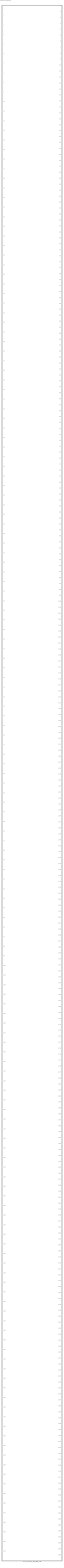
[diagram: root canvas - part 1/1, most of the canvas]
MODEL slx_aed23420b03c
KIND library
CONFIG AbsTol = auto
CONFIG FixedStep = auto
CONFIG MaxStep = auto
CONFIG MinStep = auto
CONFIG RelTol = 1e-3
CONFIG SampleTimeConstraint = Unconstrained
CONFIG Solver = VariableStepAuto
CONFIG SolverMode = Auto
CONFIG SolverName = VariableStepAuto
CONFIG StartTime = 0.0
CONFIG StopTime = 10.0
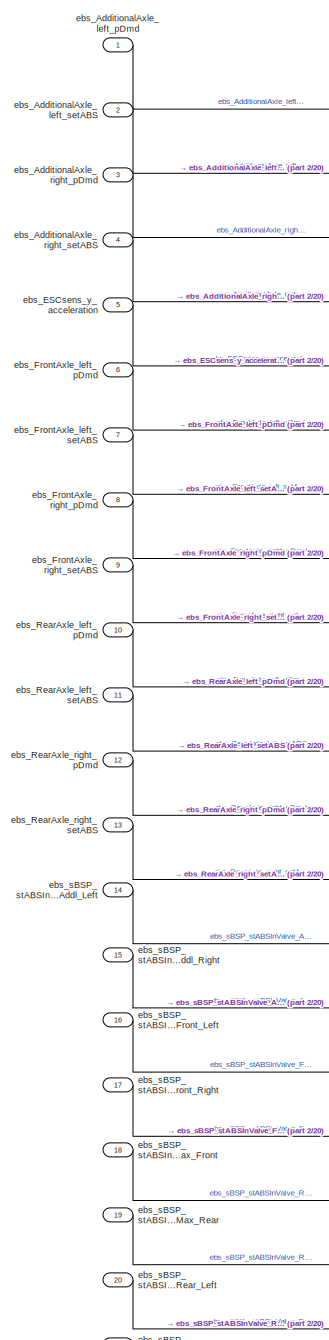
[diagram: pne_pne3d_generic_std - part 1/20, top left region]
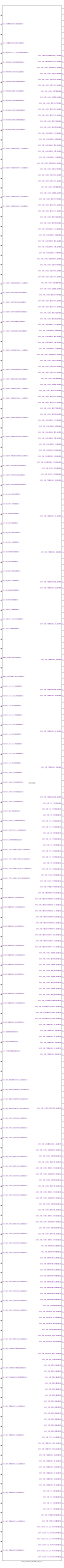
[diagram: pne_pne3d_generic_std - part 2/20, center side, full height]
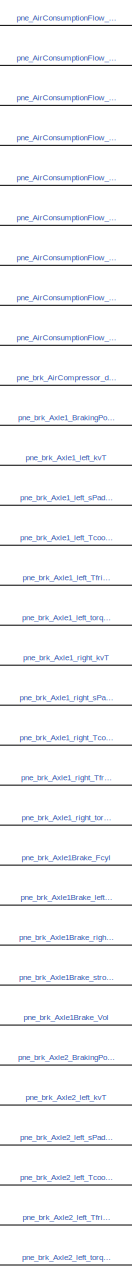
[diagram: pne_pne3d_generic_std - part 3/20, top right region]
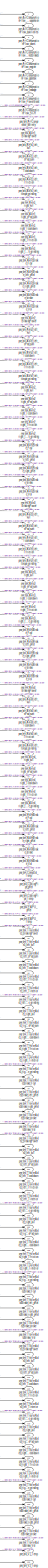
[diagram: pne_pne3d_generic_std - part 4/20, top right region]
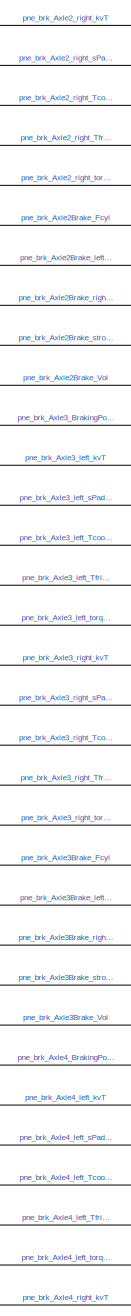
[diagram: pne_pne3d_generic_std - part 5/20, top right region]
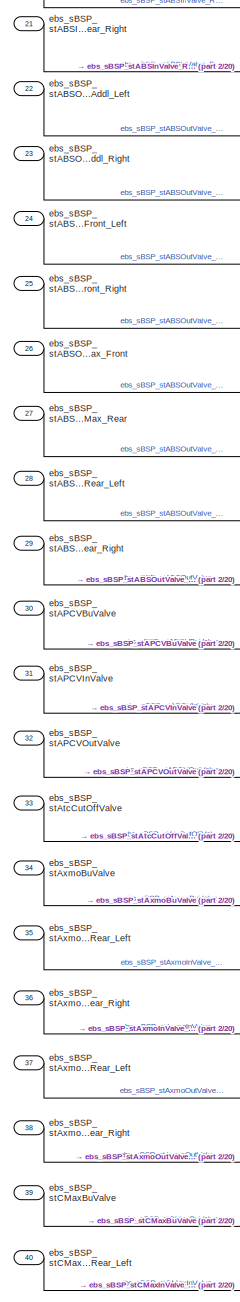
[diagram: pne_pne3d_generic_std - part 6/20, top left region]
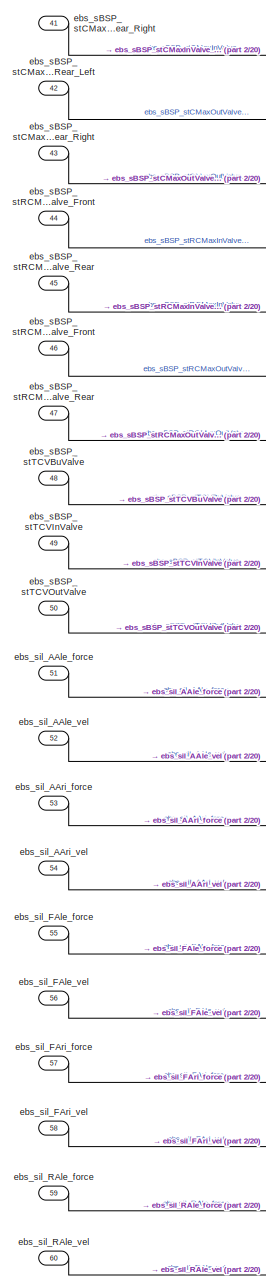
[diagram: pne_pne3d_generic_std - part 7/20, top left region]
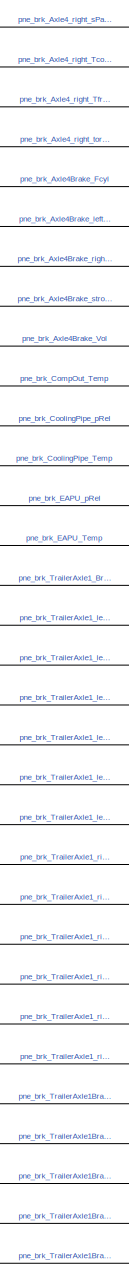
[diagram: pne_pne3d_generic_std - part 8/20, top right region]
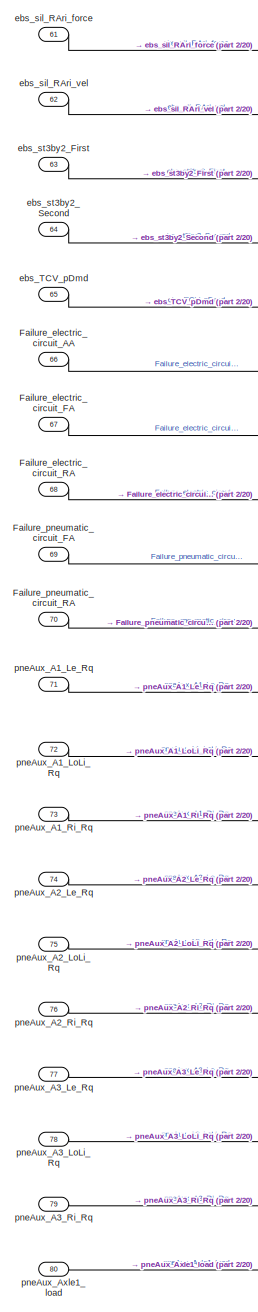
[diagram: pne_pne3d_generic_std - part 9/20, middle left region]
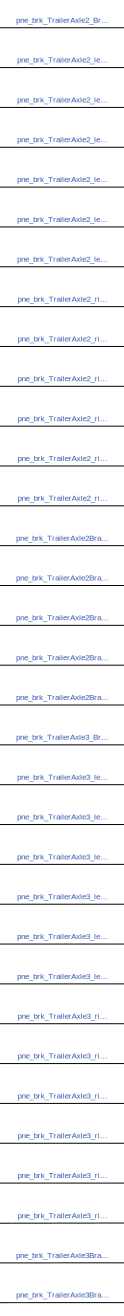
[diagram: pne_pne3d_generic_std - part 10/20, middle right region]
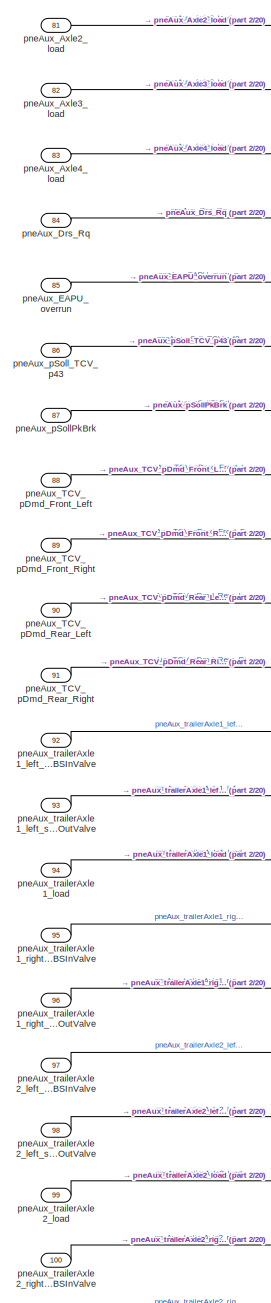
[diagram: pne_pne3d_generic_std - part 11/20, middle left region]
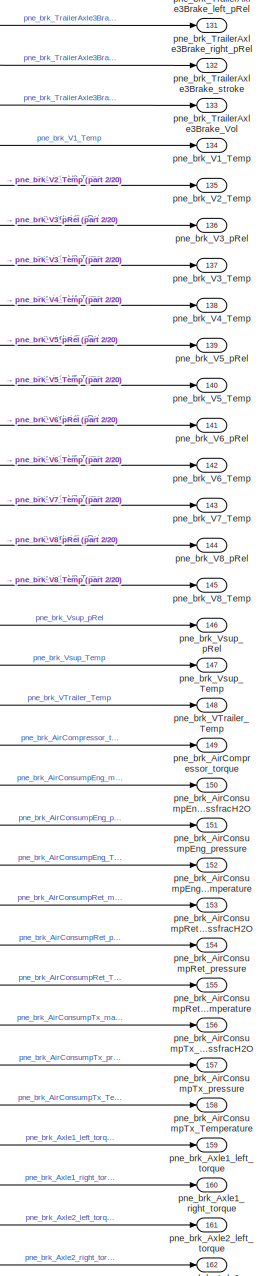
[diagram: pne_pne3d_generic_std - part 12/20, middle right region]
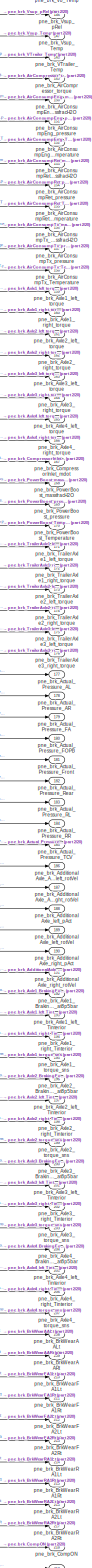
[diagram: pne_pne3d_generic_std - part 13/20, bottom right region]
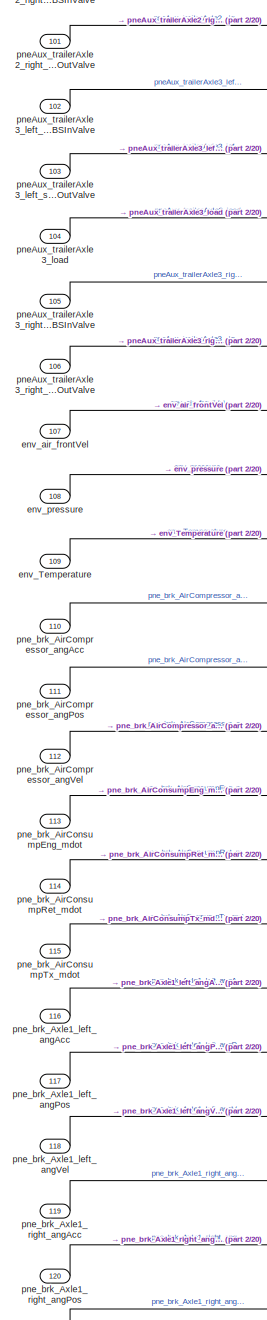
[diagram: pne_pne3d_generic_std - part 14/20, bottom left region]
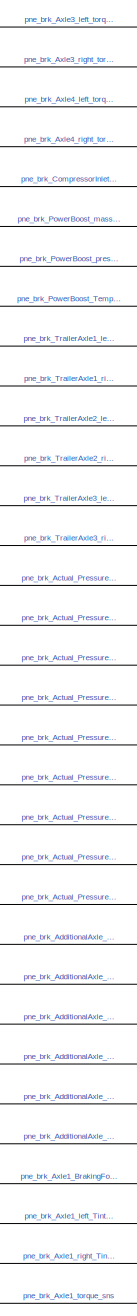
[diagram: pne_pne3d_generic_std - part 15/20, bottom right region]
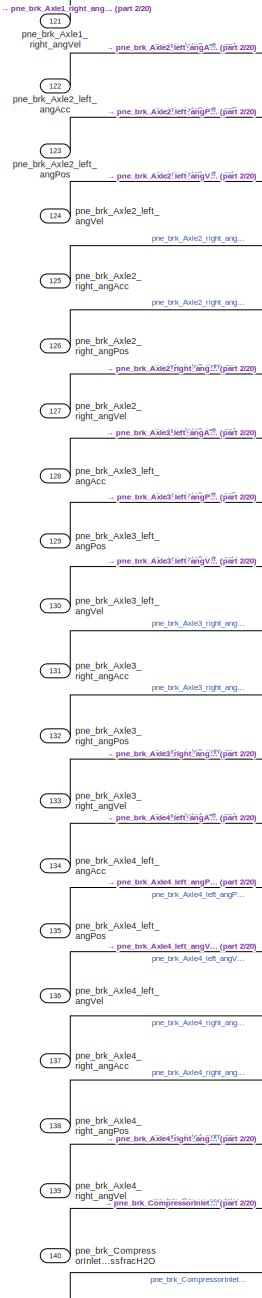
[diagram: pne_pne3d_generic_std - part 16/20, bottom left region]
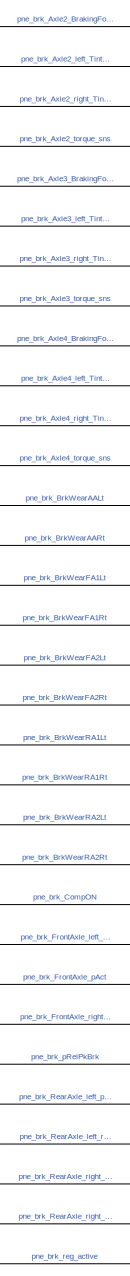
[diagram: pne_pne3d_generic_std - part 17/20, bottom right region]
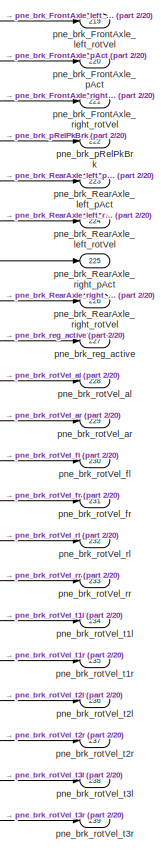
[diagram: pne_pne3d_generic_std - part 18/20, bottom right region]
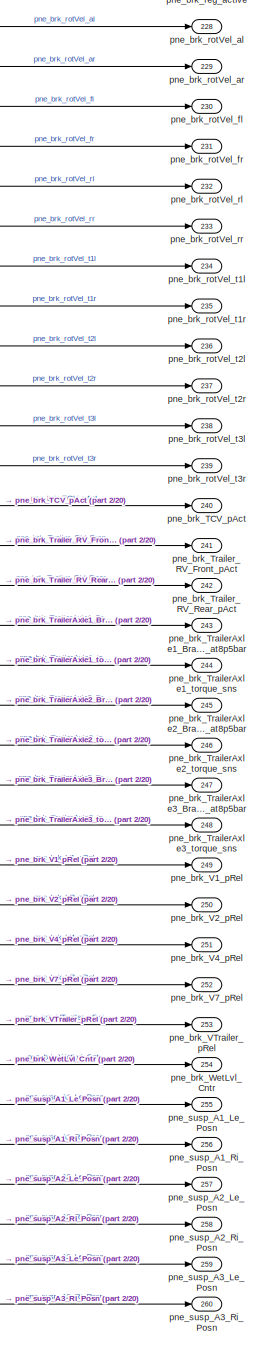
[diagram: pne_pne3d_generic_std - part 19/20, bottom right region]
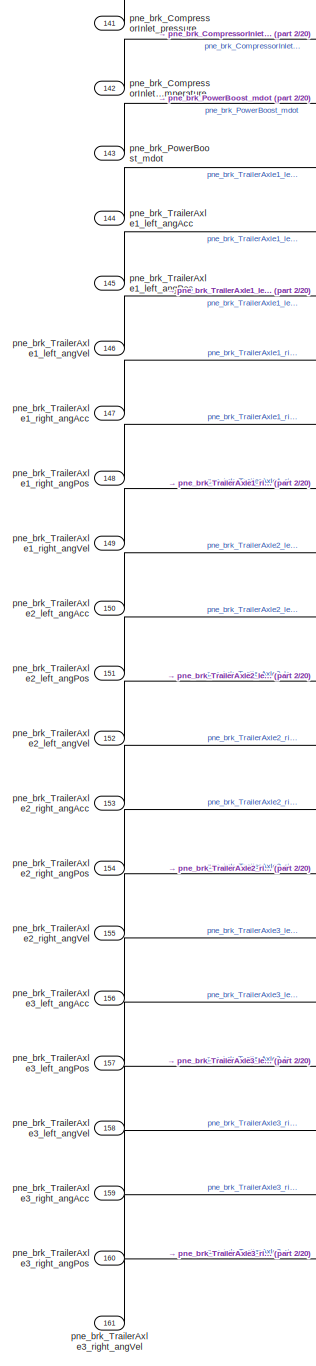
[diagram: pne_pne3d_generic_std - part 20/20, bottom left region]
BLOCK [SubSystem] pne_pne3d_generic_std
  Ports = [161, 260]
  RequestExecContextInheritance = off
  Variant = off
BLOCK [Inport] pne_pne3d_generic_std/Failure_electric_circuit_AA
  IconDisplay = Port number
  Port = 66
BLOCK [Inport] pne_pne3d_generic_std/Failure_electric_circuit_FA
  IconDisplay = Port number
  Port = 67
BLOCK [Inport] pne_pne3d_generic_std/Failure_electric_circuit_RA
  IconDisplay = Port number
  Port = 68
BLOCK [Inport] pne_pne3d_generic_std/Failure_pneumatic_circuit_FA
  IconDisplay = Port number
  Port = 69
BLOCK [Inport] pne_pne3d_generic_std/Failure_pneumatic_circuit_RA
  IconDisplay = Port number
  Port = 70
BLOCK [Inport] pne_pne3d_generic_std/ebs_AdditionalAxle_left_pDmd
  IconDisplay = Port number
BLOCK [Inport] pne_pne3d_generic_std/ebs_AdditionalAxle_left_setABS
  IconDisplay = Port number
  Port = 2
BLOCK [Inport] pne_pne3d_generic_std/ebs_AdditionalAxle_right_pDmd
  IconDisplay = Port number
  Port = 3
BLOCK [Inport] pne_pne3d_generic_std/ebs_AdditionalAxle_right_setABS
  IconDisplay = Port number
  Port = 4
BLOCK [Inport] pne_pne3d_generic_std/ebs_ESCsens_y_acceleration
  IconDisplay = Port number
  Port = 5
BLOCK [Inport] pne_pne3d_generic_std/ebs_FrontAxle_left_pDmd
  IconDisplay = Port number
  Port = 6
BLOCK [Inport] pne_pne3d_generic_std/ebs_FrontAxle_left_setABS
  IconDisplay = Port number
  Port = 7
BLOCK [Inport] pne_pne3d_generic_std/ebs_FrontAxle_right_pDmd
  IconDisplay = Port number
  Port = 8
BLOCK [Inport] pne_pne3d_generic_std/ebs_FrontAxle_right_setABS
  IconDisplay = Port number
  Port = 9
BLOCK [Inport] pne_pne3d_generic_std/ebs_RearAxle_left_pDmd
  IconDisplay = Port number
  Port = 10
BLOCK [Inport] pne_pne3d_generic_std/ebs_RearAxle_left_setABS
  IconDisplay = Port number
  Port = 11
BLOCK [Inport] pne_pne3d_generic_std/ebs_RearAxle_right_pDmd
  IconDisplay = Port number
  Port = 12
BLOCK [Inport] pne_pne3d_generic_std/ebs_RearAxle_right_setABS
  IconDisplay = Port number
  Port = 13
BLOCK [Inport] pne_pne3d_generic_std/ebs_TCV_pDmd
  IconDisplay = Port number
  Port = 65
BLOCK [Inport] pne_pne3d_generic_std/ebs_sBSP_stABSInValve_Addl_Left
  IconDisplay = Port number
  Port = 14
BLOCK [Inport] pne_pne3d_generic_std/ebs_sBSP_stABSInValve_Addl_Right
  IconDisplay = Port number
  Port = 15
BLOCK [Inport] pne_pne3d_generic_std/ebs_sBSP_stABSInValve_Front_Left
  IconDisplay = Port number
  Port = 16
BLOCK [Inport] pne_pne3d_generic_std/ebs_sBSP_stABSInValve_Front_Right
  IconDisplay = Port number
  Port = 17
BLOCK [Inport] pne_pne3d_generic_std/ebs_sBSP_stABSInValve_RCMax_Front
  IconDisplay = Port number
  Port = 18
BLOCK [Inport] pne_pne3d_generic_std/ebs_sBSP_stABSInValve_RCMax_Rear
  IconDisplay = Port number
  Port = 19
BLOCK [Inport] pne_pne3d_generic_std/ebs_sBSP_stABSInValve_Rear_Left
  IconDisplay = Port number
  Port = 20
BLOCK [Inport] pne_pne3d_generic_std/ebs_sBSP_stABSInValve_Rear_Right
  IconDisplay = Port number
  Port = 21
BLOCK [Inport] pne_pne3d_generic_std/ebs_sBSP_stABSOutValve_Addl_Left
  IconDisplay = Port number
  Port = 22
BLOCK [Inport] pne_pne3d_generic_std/ebs_sBSP_stABSOutValve_Addl_Right
  IconDisplay = Port number
  Port = 23
BLOCK [Inport] pne_pne3d_generic_std/ebs_sBSP_stABSOutValve_Front_Left
  IconDisplay = Port number
  Port = 24
BLOCK [Inport] pne_pne3d_generic_std/ebs_sBSP_stABSOutValve_Front_Right
  IconDisplay = Port number
  Port = 25
BLOCK [Inport] pne_pne3d_generic_std/ebs_sBSP_stABSOutValve_RCMax_Front
  IconDisplay = Port number
  Port = 26
BLOCK [Inport] pne_pne3d_generic_std/ebs_sBSP_stABSOutValve_RCMax_Rear
  IconDisplay = Port number
  Port = 27
BLOCK [Inport] pne_pne3d_generic_std/ebs_sBSP_stABSOutValve_Rear_Left
  IconDisplay = Port number
  Port = 28
BLOCK [Inport] pne_pne3d_generic_std/ebs_sBSP_stABSOutValve_Rear_Right
  IconDisplay = Port number
  Port = 29
BLOCK [Inport] pne_pne3d_generic_std/ebs_sBSP_stAPCVBuValve
  IconDisplay = Port number
  Port = 30
BLOCK [Inport] pne_pne3d_generic_std/ebs_sBSP_stAPCVInValve
  IconDisplay = Port number
  Port = 31
BLOCK [Inport] pne_pne3d_generic_std/ebs_sBSP_stAPCVOutValve
  IconDisplay = Port number
  Port = 32
BLOCK [Inport] pne_pne3d_generic_std/ebs_sBSP_stAtcCutOffValve
  IconDisplay = Port number
  Port = 33
BLOCK [Inport] pne_pne3d_generic_std/ebs_sBSP_stAxmoBuValve
  IconDisplay = Port number
  Port = 34
BLOCK [Inport] pne_pne3d_generic_std/ebs_sBSP_stAxmoInValve_Rear_Left
  IconDisplay = Port number
  Port = 35
BLOCK [Inport] pne_pne3d_generic_std/ebs_sBSP_stAxmoInValve_Rear_Right
  IconDisplay = Port number
  Port = 36
BLOCK [Inport] pne_pne3d_generic_std/ebs_sBSP_stAxmoOutValve_Rear_Left
  IconDisplay = Port number
  Port = 37
BLOCK [Inport] pne_pne3d_generic_std/ebs_sBSP_stAxmoOutValve_Rear_Right
  IconDisplay = Port number
  Port = 38
BLOCK [Inport] pne_pne3d_generic_std/ebs_sBSP_stCMaxBuValve
  IconDisplay = Port number
  Port = 39
BLOCK [Inport] pne_pne3d_generic_std/ebs_sBSP_stCMaxInValve_Rear_Left
  IconDisplay = Port number
  Port = 40
BLOCK [Inport] pne_pne3d_generic_std/ebs_sBSP_stCMaxInValve_Rear_Right
  IconDisplay = Port number
  Port = 41
BLOCK [Inport] pne_pne3d_generic_std/ebs_sBSP_stCMaxOutValve_Rear_Left
  IconDisplay = Port number
  Port = 42
BLOCK [Inport] pne_pne3d_generic_std/ebs_sBSP_stCMaxOutValve_Rear_Right
  IconDisplay = Port number
  Port = 43
BLOCK [Inport] pne_pne3d_generic_std/ebs_sBSP_stRCMaxInValve_Front
  IconDisplay = Port number
  Port = 44
BLOCK [Inport] pne_pne3d_generic_std/ebs_sBSP_stRCMaxInValve_Rear
  IconDisplay = Port number
  Port = 45
BLOCK [Inport] pne_pne3d_generic_std/ebs_sBSP_stRCMaxOutValve_Front
  IconDisplay = Port number
  Port = 46
BLOCK [Inport] pne_pne3d_generic_std/ebs_sBSP_stRCMaxOutValve_Rear
  IconDisplay = Port number
  Port = 47
BLOCK [Inport] pne_pne3d_generic_std/ebs_sBSP_stTCVBuValve
  IconDisplay = Port number
  Port = 48
BLOCK [Inport] pne_pne3d_generic_std/ebs_sBSP_stTCVInValve
  IconDisplay = Port number
  Port = 49
BLOCK [Inport] pne_pne3d_generic_std/ebs_sBSP_stTCVOutValve
  IconDisplay = Port number
  Port = 50
BLOCK [Inport] pne_pne3d_generic_std/ebs_sil_AAle_force
  IconDisplay = Port number
  Port = 51
BLOCK [Inport] pne_pne3d_generic_std/ebs_sil_AAle_vel
  IconDisplay = Port number
  Port = 52
BLOCK [Inport] pne_pne3d_generic_std/ebs_sil_AAri_force
  IconDisplay = Port number
  Port = 53
BLOCK [Inport] pne_pne3d_generic_std/ebs_sil_AAri_vel
  IconDisplay = Port number
  Port = 54
BLOCK [Inport] pne_pne3d_generic_std/ebs_sil_FAle_force
  IconDisplay = Port number
  Port = 55
BLOCK [Inport] pne_pne3d_generic_std/ebs_sil_FAle_vel
  IconDisplay = Port number
  Port = 56
BLOCK [Inport] pne_pne3d_generic_std/ebs_sil_FAri_force
  IconDisplay = Port number
  Port = 57
BLOCK [Inport] pne_pne3d_generic_std/ebs_sil_FAri_vel
  IconDisplay = Port number
  Port = 58
BLOCK [Inport] pne_pne3d_generic_std/ebs_sil_RAle_force
  IconDisplay = Port number
  Port = 59
BLOCK [Inport] pne_pne3d_generic_std/ebs_sil_RAle_vel
  IconDisplay = Port number
  Port = 60
BLOCK [Inport] pne_pne3d_generic_std/ebs_sil_RAri_force
  IconDisplay = Port number
  Port = 61
BLOCK [Inport] pne_pne3d_generic_std/ebs_sil_RAri_vel
  IconDisplay = Port number
  Port = 62
BLOCK [Inport] pne_pne3d_generic_std/ebs_st3by2_First
  IconDisplay = Port number
  Port = 63
BLOCK [Inport] pne_pne3d_generic_std/ebs_st3by2_Second
  IconDisplay = Port number
  Port = 64
BLOCK [Inport] pne_pne3d_generic_std/env_Temperature
  IconDisplay = Port number
  Port = 109
BLOCK [Inport] pne_pne3d_generic_std/env_air_frontVel
  IconDisplay = Port number
  Port = 107
BLOCK [Inport] pne_pne3d_generic_std/env_pressure
  IconDisplay = Port number
  Port = 108
BLOCK [Inport] pne_pne3d_generic_std/pneAux_A1_Le_Rq
  IconDisplay = Port number
  Port = 71
BLOCK [Inport] pne_pne3d_generic_std/pneAux_A1_LoLi_Rq
  IconDisplay = Port number
  Port = 72
BLOCK [Inport] pne_pne3d_generic_std/pneAux_A1_Ri_Rq
  IconDisplay = Port number
  Port = 73
BLOCK [Inport] pne_pne3d_generic_std/pneAux_A2_Le_Rq
  IconDisplay = Port number
  Port = 74
BLOCK [Inport] pne_pne3d_generic_std/pneAux_A2_LoLi_Rq
  IconDisplay = Port number
  Port = 75
BLOCK [Inport] pne_pne3d_generic_std/pneAux_A2_Ri_Rq
  IconDisplay = Port number
  Port = 76
BLOCK [Inport] pne_pne3d_generic_std/pneAux_A3_Le_Rq
  IconDisplay = Port number
  Port = 77
BLOCK [Inport] pne_pne3d_generic_std/pneAux_A3_LoLi_Rq
  IconDisplay = Port number
  Port = 78
BLOCK [Inport] pne_pne3d_generic_std/pneAux_A3_Ri_Rq
  IconDisplay = Port number
  Port = 79
BLOCK [Inport] pne_pne3d_generic_std/pneAux_Axle1_load
  IconDisplay = Port number
  Port = 80
BLOCK [Inport] pne_pne3d_generic_std/pneAux_Axle2_load
  IconDisplay = Port number
  Port = 81
BLOCK [Inport] pne_pne3d_generic_std/pneAux_Axle3_load
  IconDisplay = Port number
  Port = 82
BLOCK [Inport] pne_pne3d_generic_std/pneAux_Axle4_load
  IconDisplay = Port number
  Port = 83
BLOCK [Inport] pne_pne3d_generic_std/pneAux_Drs_Rq
  IconDisplay = Port number
  Port = 84
BLOCK [Inport] pne_pne3d_generic_std/pneAux_EAPU_overrun
  IconDisplay = Port number
  Port = 85
BLOCK [Inport] pne_pne3d_generic_std/pneAux_TCV_pDmd_Front_Left
  IconDisplay = Port number
  Port = 88
BLOCK [Inport] pne_pne3d_generic_std/pneAux_TCV_pDmd_Front_Right
  IconDisplay = Port number
  Port = 89
BLOCK [Inport] pne_pne3d_generic_std/pneAux_TCV_pDmd_Rear_Left
  IconDisplay = Port number
  Port = 90
BLOCK [Inport] pne_pne3d_generic_std/pneAux_TCV_pDmd_Rear_Right
  IconDisplay = Port number
  Port = 91
BLOCK [Inport] pne_pne3d_generic_std/pneAux_pSollPkBrk
  IconDisplay = Port number
  Port = 87
BLOCK [Inport] pne_pne3d_generic_std/pneAux_pSoll_TCV_p43
  IconDisplay = Port number
  Port = 86
BLOCK [Inport] pne_pne3d_generic_std/pneAux_trailerAxle1_left_stABSInValve
  IconDisplay = Port number
  Port = 92
BLOCK [Inport] pne_pne3d_generic_std/pneAux_trailerAxle1_left_stABSOutValve
  IconDisplay = Port number
  Port = 93
BLOCK [Inport] pne_pne3d_generic_std/pneAux_trailerAxle1_load
  IconDisplay = Port number
  Port = 94
BLOCK [Inport] pne_pne3d_generic_std/pneAux_trailerAxle1_right_stABSInValve
  IconDisplay = Port number
  Port = 95
BLOCK [Inport] pne_pne3d_generic_std/pneAux_trailerAxle1_right_stABSOutValve
  IconDisplay = Port number
  Port = 96
BLOCK [Inport] pne_pne3d_generic_std/pneAux_trailerAxle2_left_stABSInValve
  IconDisplay = Port number
  Port = 97
BLOCK [Inport] pne_pne3d_generic_std/pneAux_trailerAxle2_left_stABSOutValve
  IconDisplay = Port number
  Port = 98
BLOCK [Inport] pne_pne3d_generic_std/pneAux_trailerAxle2_load
  IconDisplay = Port number
  Port = 99
BLOCK [Inport] pne_pne3d_generic_std/pneAux_trailerAxle2_right_stABSInValve
  IconDisplay = Port number
  Port = 100
BLOCK [Inport] pne_pne3d_generic_std/pneAux_trailerAxle2_right_stABSOutValve
  IconDisplay = Port number
  Port = 101
BLOCK [Inport] pne_pne3d_generic_std/pneAux_trailerAxle3_left_stABSInValve
  IconDisplay = Port number
  Port = 102
BLOCK [Inport] pne_pne3d_generic_std/pneAux_trailerAxle3_left_stABSOutValve
  IconDisplay = Port number
  Port = 103
BLOCK [Inport] pne_pne3d_generic_std/pneAux_trailerAxle3_load
  IconDisplay = Port number
  Port = 104
BLOCK [Inport] pne_pne3d_generic_std/pneAux_trailerAxle3_right_stABSInValve
  IconDisplay = Port number
  Port = 105
BLOCK [Inport] pne_pne3d_generic_std/pneAux_trailerAxle3_right_stABSOutValve
  IconDisplay = Port number
  Port = 106
BLOCK [Outport] pne_pne3d_generic_std/pne_AirConsumptionFlow_AirSuspension
  IconDisplay = Port number
BLOCK [Outport] pne_pne3d_generic_std/pne_AirConsumptionFlow_EnduranceBrakes
  IconDisplay = Port number
  Port = 4
BLOCK [Outport] pne_pne3d_generic_std/pne_AirConsumptionFlow_PowerBoost
  IconDisplay = Port number
  Port = 8
BLOCK [Outport] pne_pne3d_generic_std/pne_AirConsumptionFlow_SCR
  IconDisplay = Port number
  Port = 9
BLOCK [Outport] pne_pne3d_generic_std/pne_AirConsumptionFlow_auxiliaries
  IconDisplay = Port number
  Port = 2
BLOCK [Outport] pne_pne3d_generic_std/pne_AirConsumptionFlow_doors
  IconDisplay = Port number
  Port = 3
BLOCK [Outport] pne_pne3d_generic_std/pne_AirConsumptionFlow_engine
  IconDisplay = Port number
  Port = 5
BLOCK [Outport] pne_pne3d_generic_std/pne_AirConsumptionFlow_gearbox
  IconDisplay = Port number
  Port = 6
BLOCK [Outport] pne_pne3d_generic_std/pne_AirConsumptionFlow_leakage
  IconDisplay = Port number
  Port = 7
BLOCK [Outport] pne_pne3d_generic_std/pne_brk_Actual_Pressure_AL
  IconDisplay = Port number
  Port = 177
BLOCK [Outport] pne_pne3d_generic_std/pne_brk_Actual_Pressure_AR
  IconDisplay = Port number
  Port = 178
BLOCK [Outport] pne_pne3d_generic_std/pne_brk_Actual_Pressure_FA
  IconDisplay = Port number
  Port = 179
BLOCK [Outport] pne_pne3d_generic_std/pne_brk_Actual_Pressure_FOPB
  IconDisplay = Port number
  Port = 180
BLOCK [Outport] pne_pne3d_generic_std/pne_brk_Actual_Pressure_Front
  IconDisplay = Port number
  Port = 181
BLOCK [Outport] pne_pne3d_generic_std/pne_brk_Actual_Pressure_RL
  IconDisplay = Port number
  Port = 183
BLOCK [Outport] pne_pne3d_generic_std/pne_brk_Actual_Pressure_RR
  IconDisplay = Port number
  Port = 184
BLOCK [Outport] pne_pne3d_generic_std/pne_brk_Actual_Pressure_Rear
  IconDisplay = Port number
  Port = 182
BLOCK [Outport] pne_pne3d_generic_std/pne_brk_Actual_Pressure_TCV
  IconDisplay = Port number
  Port = 185
BLOCK [Outport] pne_pne3d_generic_std/pne_brk_AdditionalAxle_AxMo_left_rotVel
  IconDisplay = Port number
  Port = 186
BLOCK [Outport] pne_pne3d_generic_std/pne_brk_AdditionalAxle_AxMo_right_rotVel
  IconDisplay = Port number
  Port = 187
BLOCK [Outport] pne_pne3d_generic_std/pne_brk_AdditionalAxle_left_pAct
  IconDisplay = Port number
  Port = 188
BLOCK [Outport] pne_pne3d_generic_std/pne_brk_AdditionalAxle_left_rotVel
  IconDisplay = Port number
  Port = 189
BLOCK [Outport] pne_pne3d_generic_std/pne_brk_AdditionalAxle_right_pAct
  IconDisplay = Port number
  Port = 190
BLOCK [Outport] pne_pne3d_generic_std/pne_brk_AdditionalAxle_right_rotVel
  IconDisplay = Port number
  Port = 191
BLOCK [Inport] pne_pne3d_generic_std/pne_brk_AirCompressor_angAcc
  IconDisplay = Port number
  Port = 110
BLOCK [Inport] pne_pne3d_generic_std/pne_brk_AirCompressor_angPos
  IconDisplay = Port number
  Port = 111
BLOCK [Inport] pne_pne3d_generic_std/pne_brk_AirCompressor_angVel
  IconDisplay = Port number
  Port = 112
BLOCK [Outport] pne_pne3d_generic_std/pne_brk_AirCompressor_delivery
  IconDisplay = Port number
  Port = 10
BLOCK [Outport] pne_pne3d_generic_std/pne_brk_AirCompressor_torque
  IconDisplay = Port number
  Port = 149
BLOCK [Outport] pne_pne3d_generic_std/pne_brk_AirConsumpEng_Temperature
  IconDisplay = Port number
  Port = 152
BLOCK [Outport] pne_pne3d_generic_std/pne_brk_AirConsumpEng_massfracH2O
  IconDisplay = Port number
  Port = 150
BLOCK [Inport] pne_pne3d_generic_std/pne_brk_AirConsumpEng_mdot
  IconDisplay = Port number
  Port = 113
BLOCK [Outport] pne_pne3d_generic_std/pne_brk_AirConsumpEng_pressure
  IconDisplay = Port number
  Port = 151
BLOCK [Outport] pne_pne3d_generic_std/pne_brk_AirConsumpRet_Temperature
  IconDisplay = Port number
  Port = 155
BLOCK [Outport] pne_pne3d_generic_std/pne_brk_AirConsumpRet_massfracH2O
  IconDisplay = Port number
  Port = 153
BLOCK [Inport] pne_pne3d_generic_std/pne_brk_AirConsumpRet_mdot
  IconDisplay = Port number
  Port = 114
BLOCK [Outport] pne_pne3d_generic_std/pne_brk_AirConsumpRet_pressure
  IconDisplay = Port number
  Port = 154
BLOCK [Outport] pne_pne3d_generic_std/pne_brk_AirConsumpTx_Temperature
  IconDisplay = Port number
  Port = 158
BLOCK [Outport] pne_pne3d_generic_std/pne_brk_AirConsumpTx_massfracH2O
  IconDisplay = Port number
  Port = 156
BLOCK [Inport] pne_pne3d_generic_std/pne_brk_AirConsumpTx_mdot
  IconDisplay = Port number
  Port = 115
BLOCK [Outport] pne_pne3d_generic_std/pne_brk_AirConsumpTx_pressure
  IconDisplay = Port number
  Port = 157
BLOCK [Outport] pne_pne3d_generic_std/pne_brk_Axle1Brake_Fcyl
  IconDisplay = Port number
  Port = 22
BLOCK [Outport] pne_pne3d_generic_std/pne_brk_Axle1Brake_Vol
  IconDisplay = Port number
  Port = 26
BLOCK [Outport] pne_pne3d_generic_std/pne_brk_Axle1Brake_left_pRel
  IconDisplay = Port number
  Port = 23
BLOCK [Outport] pne_pne3d_generic_std/pne_brk_Axle1Brake_right_pRel
  IconDisplay = Port number
  Port = 24
BLOCK [Outport] pne_pne3d_generic_std/pne_brk_Axle1Brake_stroke
  IconDisplay = Port number
  Port = 25
BLOCK [Outport] pne_pne3d_generic_std/pne_brk_Axle1_BrakingForce_at8p5bar
  IconDisplay = Port number
  Port = 192
BLOCK [Outport] pne_pne3d_generic_std/pne_brk_Axle1_BrakingPower
  IconDisplay = Port number
  Port = 11
BLOCK [Outport] pne_pne3d_generic_std/pne_brk_Axle1_left_Tcooldown
  IconDisplay = Port number
  Port = 14
BLOCK [Outport] pne_pne3d_generic_std/pne_brk_Axle1_left_Tfriction
  IconDisplay = Port number
  Port = 15
BLOCK [Outport] pne_pne3d_generic_std/pne_brk_Axle1_left_Tinterior
  IconDisplay = Port number
  Port = 193
BLOCK [Inport] pne_pne3d_generic_std/pne_brk_Axle1_left_angAcc
  IconDisplay = Port number
  Port = 116
BLOCK [Inport] pne_pne3d_generic_std/pne_brk_Axle1_left_angPos
  IconDisplay = Port number
  Port = 117
BLOCK [Inport] pne_pne3d_generic_std/pne_brk_Axle1_left_angVel
  IconDisplay = Port number
  Port = 118
BLOCK [Outport] pne_pne3d_generic_std/pne_brk_Axle1_left_kvT
  IconDisplay = Port number
  Port = 12
BLOCK [Outport] pne_pne3d_generic_std/pne_brk_Axle1_left_sPad_sum
  IconDisplay = Port number
  Port = 13
BLOCK [Outport] pne_pne3d_generic_std/pne_brk_Axle1_left_torque
  IconDisplay = Port number
  Port = 159
BLOCK [Outport] pne_pne3d_generic_std/pne_brk_Axle1_left_torque_grinding
  IconDisplay = Port number
  Port = 16
BLOCK [Outport] pne_pne3d_generic_std/pne_brk_Axle1_right_Tcooldown
  IconDisplay = Port number
  Port = 19
BLOCK [Outport] pne_pne3d_generic_std/pne_brk_Axle1_right_Tfriction
  IconDisplay = Port number
  Port = 20
BLOCK [Outport] pne_pne3d_generic_std/pne_brk_Axle1_right_Tinterior
  IconDisplay = Port number
  Port = 194
BLOCK [Inport] pne_pne3d_generic_std/pne_brk_Axle1_right_angAcc
  IconDisplay = Port number
  Port = 119
BLOCK [Inport] pne_pne3d_generic_std/pne_brk_Axle1_right_angPos
  IconDisplay = Port number
  Port = 120
BLOCK [Inport] pne_pne3d_generic_std/pne_brk_Axle1_right_angVel
  IconDisplay = Port number
  Port = 121
BLOCK [Outport] pne_pne3d_generic_std/pne_brk_Axle1_right_kvT
  IconDisplay = Port number
  Port = 17
BLOCK [Outport] pne_pne3d_generic_std/pne_brk_Axle1_right_sPad_sum
  IconDisplay = Port number
  Port = 18
BLOCK [Outport] pne_pne3d_generic_std/pne_brk_Axle1_right_torque
  IconDisplay = Port number
  Port = 160
BLOCK [Outport] pne_pne3d_generic_std/pne_brk_Axle1_right_torque_grinding
  IconDisplay = Port number
  Port = 21
BLOCK [Outport] pne_pne3d_generic_std/pne_brk_Axle1_torque_sns
  IconDisplay = Port number
  Port = 195
BLOCK [Outport] pne_pne3d_generic_std/pne_brk_Axle2Brake_Fcyl
  IconDisplay = Port number
  Port = 38
BLOCK [Outport] pne_pne3d_generic_std/pne_brk_Axle2Brake_Vol
  IconDisplay = Port number
  Port = 42
BLOCK [Outport] pne_pne3d_generic_std/pne_brk_Axle2Brake_left_pRel
  IconDisplay = Port number
  Port = 39
BLOCK [Outport] pne_pne3d_generic_std/pne_brk_Axle2Brake_right_pRel
  IconDisplay = Port number
  Port = 40
BLOCK [Outport] pne_pne3d_generic_std/pne_brk_Axle2Brake_stroke
  IconDisplay = Port number
  Port = 41
BLOCK [Outport] pne_pne3d_generic_std/pne_brk_Axle2_BrakingForce_at8p5bar
  IconDisplay = Port number
  Port = 196
BLOCK [Outport] pne_pne3d_generic_std/pne_brk_Axle2_BrakingPower
  IconDisplay = Port number
  Port = 27
BLOCK [Outport] pne_pne3d_generic_std/pne_brk_Axle2_left_Tcooldown
  IconDisplay = Port number
  Port = 30
BLOCK [Outport] pne_pne3d_generic_std/pne_brk_Axle2_left_Tfriction
  IconDisplay = Port number
  Port = 31
BLOCK [Outport] pne_pne3d_generic_std/pne_brk_Axle2_left_Tinterior
  IconDisplay = Port number
  Port = 197
BLOCK [Inport] pne_pne3d_generic_std/pne_brk_Axle2_left_angAcc
  IconDisplay = Port number
  Port = 122
BLOCK [Inport] pne_pne3d_generic_std/pne_brk_Axle2_left_angPos
  IconDisplay = Port number
  Port = 123
BLOCK [Inport] pne_pne3d_generic_std/pne_brk_Axle2_left_angVel
  IconDisplay = Port number
  Port = 124
BLOCK [Outport] pne_pne3d_generic_std/pne_brk_Axle2_left_kvT
  IconDisplay = Port number
  Port = 28
BLOCK [Outport] pne_pne3d_generic_std/pne_brk_Axle2_left_sPad_sum
  IconDisplay = Port number
  Port = 29
BLOCK [Outport] pne_pne3d_generic_std/pne_brk_Axle2_left_torque
  IconDisplay = Port number
  Port = 161
BLOCK [Outport] pne_pne3d_generic_std/pne_brk_Axle2_left_torque_grinding
  IconDisplay = Port number
  Port = 32
BLOCK [Outport] pne_pne3d_generic_std/pne_brk_Axle2_right_Tcooldown
  IconDisplay = Port number
  Port = 35
BLOCK [Outport] pne_pne3d_generic_std/pne_brk_Axle2_right_Tfriction
  IconDisplay = Port number
  Port = 36
BLOCK [Outport] pne_pne3d_generic_std/pne_brk_Axle2_right_Tinterior
  IconDisplay = Port number
  Port = 198
BLOCK [Inport] pne_pne3d_generic_std/pne_brk_Axle2_right_angAcc
  IconDisplay = Port number
  Port = 125
BLOCK [Inport] pne_pne3d_generic_std/pne_brk_Axle2_right_angPos
  IconDisplay = Port number
  Port = 126
BLOCK [Inport] pne_pne3d_generic_std/pne_brk_Axle2_right_angVel
  IconDisplay = Port number
  Port = 127
BLOCK [Outport] pne_pne3d_generic_std/pne_brk_Axle2_right_kvT
  IconDisplay = Port number
  Port = 33
BLOCK [Outport] pne_pne3d_generic_std/pne_brk_Axle2_right_sPad_sum
  IconDisplay = Port number
  Port = 34
BLOCK [Outport] pne_pne3d_generic_std/pne_brk_Axle2_right_torque
  IconDisplay = Port number
  Port = 162
BLOCK [Outport] pne_pne3d_generic_std/pne_brk_Axle2_right_torque_grinding
  IconDisplay = Port number
  Port = 37
BLOCK [Outport] pne_pne3d_generic_std/pne_brk_Axle2_torque_sns
  IconDisplay = Port number
  Port = 199
BLOCK [Outport] pne_pne3d_generic_std/pne_brk_Axle3Brake_Fcyl
  IconDisplay = Port number
  Port = 54
BLOCK [Outport] pne_pne3d_generic_std/pne_brk_Axle3Brake_Vol
  IconDisplay = Port number
  Port = 58
BLOCK [Outport] pne_pne3d_generic_std/pne_brk_Axle3Brake_left_pRel
  IconDisplay = Port number
  Port = 55
BLOCK [Outport] pne_pne3d_generic_std/pne_brk_Axle3Brake_right_pRel
  IconDisplay = Port number
  Port = 56
BLOCK [Outport] pne_pne3d_generic_std/pne_brk_Axle3Brake_stroke
  IconDisplay = Port number
  Port = 57
BLOCK [Outport] pne_pne3d_generic_std/pne_brk_Axle3_BrakingForce_at8p5bar
  IconDisplay = Port number
  Port = 200
BLOCK [Outport] pne_pne3d_generic_std/pne_brk_Axle3_BrakingPower
  IconDisplay = Port number
  Port = 43
BLOCK [Outport] pne_pne3d_generic_std/pne_brk_Axle3_left_Tcooldown
  IconDisplay = Port number
  Port = 46
BLOCK [Outport] pne_pne3d_generic_std/pne_brk_Axle3_left_Tfriction
  IconDisplay = Port number
  Port = 47
BLOCK [Outport] pne_pne3d_generic_std/pne_brk_Axle3_left_Tinterior
  IconDisplay = Port number
  Port = 201
BLOCK [Inport] pne_pne3d_generic_std/pne_brk_Axle3_left_angAcc
  IconDisplay = Port number
  Port = 128
BLOCK [Inport] pne_pne3d_generic_std/pne_brk_Axle3_left_angPos
  IconDisplay = Port number
  Port = 129
BLOCK [Inport] pne_pne3d_generic_std/pne_brk_Axle3_left_angVel
  IconDisplay = Port number
  Port = 130
BLOCK [Outport] pne_pne3d_generic_std/pne_brk_Axle3_left_kvT
  IconDisplay = Port number
  Port = 44
BLOCK [Outport] pne_pne3d_generic_std/pne_brk_Axle3_left_sPad_sum
  IconDisplay = Port number
  Port = 45
BLOCK [Outport] pne_pne3d_generic_std/pne_brk_Axle3_left_torque
  IconDisplay = Port number
  Port = 163
BLOCK [Outport] pne_pne3d_generic_std/pne_brk_Axle3_left_torque_grinding
  IconDisplay = Port number
  Port = 48
BLOCK [Outport] pne_pne3d_generic_std/pne_brk_Axle3_right_Tcooldown
  IconDisplay = Port number
  Port = 51
BLOCK [Outport] pne_pne3d_generic_std/pne_brk_Axle3_right_Tfriction
  IconDisplay = Port number
  Port = 52
BLOCK [Outport] pne_pne3d_generic_std/pne_brk_Axle3_right_Tinterior
  IconDisplay = Port number
  Port = 202
BLOCK [Inport] pne_pne3d_generic_std/pne_brk_Axle3_right_angAcc
  IconDisplay = Port number
  Port = 131
BLOCK [Inport] pne_pne3d_generic_std/pne_brk_Axle3_right_angPos
  IconDisplay = Port number
  Port = 132
BLOCK [Inport] pne_pne3d_generic_std/pne_brk_Axle3_right_angVel
  IconDisplay = Port number
  Port = 133
BLOCK [Outport] pne_pne3d_generic_std/pne_brk_Axle3_right_kvT
  IconDisplay = Port number
  Port = 49
BLOCK [Outport] pne_pne3d_generic_std/pne_brk_Axle3_right_sPad_sum
  IconDisplay = Port number
  Port = 50
BLOCK [Outport] pne_pne3d_generic_std/pne_brk_Axle3_right_torque
  IconDisplay = Port number
  Port = 164
BLOCK [Outport] pne_pne3d_generic_std/pne_brk_Axle3_right_torque_grinding
  IconDisplay = Port number
  Port = 53
BLOCK [Outport] pne_pne3d_generic_std/pne_brk_Axle3_torque_sns
  IconDisplay = Port number
  Port = 203
BLOCK [Outport] pne_pne3d_generic_std/pne_brk_Axle4Brake_Fcyl
  IconDisplay = Port number
  Port = 70
BLOCK [Outport] pne_pne3d_generic_std/pne_brk_Axle4Brake_Vol
  IconDisplay = Port number
  Port = 74
BLOCK [Outport] pne_pne3d_generic_std/pne_brk_Axle4Brake_left_pRel
  IconDisplay = Port number
  Port = 71
BLOCK [Outport] pne_pne3d_generic_std/pne_brk_Axle4Brake_right_pRel
  IconDisplay = Port number
  Port = 72
BLOCK [Outport] pne_pne3d_generic_std/pne_brk_Axle4Brake_stroke
  IconDisplay = Port number
  Port = 73
BLOCK [Outport] pne_pne3d_generic_std/pne_brk_Axle4_BrakingForce_at8p5bar
  IconDisplay = Port number
  Port = 204
BLOCK [Outport] pne_pne3d_generic_std/pne_brk_Axle4_BrakingPower
  IconDisplay = Port number
  Port = 59
BLOCK [Outport] pne_pne3d_generic_std/pne_brk_Axle4_left_Tcooldown
  IconDisplay = Port number
  Port = 62
BLOCK [Outport] pne_pne3d_generic_std/pne_brk_Axle4_left_Tfriction
  IconDisplay = Port number
  Port = 63
BLOCK [Outport] pne_pne3d_generic_std/pne_brk_Axle4_left_Tinterior
  IconDisplay = Port number
  Port = 205
BLOCK [Inport] pne_pne3d_generic_std/pne_brk_Axle4_left_angAcc
  IconDisplay = Port number
  Port = 134
BLOCK [Inport] pne_pne3d_generic_std/pne_brk_Axle4_left_angPos
  IconDisplay = Port number
  Port = 135
BLOCK [Inport] pne_pne3d_generic_std/pne_brk_Axle4_left_angVel
  IconDisplay = Port number
  Port = 136
BLOCK [Outport] pne_pne3d_generic_std/pne_brk_Axle4_left_kvT
  IconDisplay = Port number
  Port = 60
BLOCK [Outport] pne_pne3d_generic_std/pne_brk_Axle4_left_sPad_sum
  IconDisplay = Port number
  Port = 61
BLOCK [Outport] pne_pne3d_generic_std/pne_brk_Axle4_left_torque
  IconDisplay = Port number
  Port = 165
BLOCK [Outport] pne_pne3d_generic_std/pne_brk_Axle4_left_torque_grinding
  IconDisplay = Port number
  Port = 64
BLOCK [Outport] pne_pne3d_generic_std/pne_brk_Axle4_right_Tcooldown
  IconDisplay = Port number
  Port = 67
BLOCK [Outport] pne_pne3d_generic_std/pne_brk_Axle4_right_Tfriction
  IconDisplay = Port number
  Port = 68
BLOCK [Outport] pne_pne3d_generic_std/pne_brk_Axle4_right_Tinterior
  IconDisplay = Port number
  Port = 206
BLOCK [Inport] pne_pne3d_generic_std/pne_brk_Axle4_right_angAcc
  IconDisplay = Port number
  Port = 137
BLOCK [Inport] pne_pne3d_generic_std/pne_brk_Axle4_right_angPos
  IconDisplay = Port number
  Port = 138
BLOCK [Inport] pne_pne3d_generic_std/pne_brk_Axle4_right_angVel
  IconDisplay = Port number
  Port = 139
BLOCK [Outport] pne_pne3d_generic_std/pne_brk_Axle4_right_kvT
  IconDisplay = Port number
  Port = 65
BLOCK [Outport] pne_pne3d_generic_std/pne_brk_Axle4_right_sPad_sum
  IconDisplay = Port number
  Port = 66
BLOCK [Outport] pne_pne3d_generic_std/pne_brk_Axle4_right_torque
  IconDisplay = Port number
  Port = 166
BLOCK [Outport] pne_pne3d_generic_std/pne_brk_Axle4_right_torque_grinding
  IconDisplay = Port number
  Port = 69
BLOCK [Outport] pne_pne3d_generic_std/pne_brk_Axle4_torque_sns
  IconDisplay = Port number
  Port = 207
BLOCK [Outport] pne_pne3d_generic_std/pne_brk_BrkWearAALt
  IconDisplay = Port number
  Port = 208
BLOCK [Outport] pne_pne3d_generic_std/pne_brk_BrkWearAARt
  IconDisplay = Port number
  Port = 209
BLOCK [Outport] pne_pne3d_generic_std/pne_brk_BrkWearFA1Lt
  IconDisplay = Port number
  Port = 210
BLOCK [Outport] pne_pne3d_generic_std/pne_brk_BrkWearFA1Rt
  IconDisplay = Port number
  Port = 211
BLOCK [Outport] pne_pne3d_generic_std/pne_brk_BrkWearFA2Lt
  IconDisplay = Port number
  Port = 212
BLOCK [Outport] pne_pne3d_generic_std/pne_brk_BrkWearFA2Rt
  IconDisplay = Port number
  Port = 213
BLOCK [Outport] pne_pne3d_generic_std/pne_brk_BrkWearRA1Lt
  IconDisplay = Port number
  Port = 214
BLOCK [Outport] pne_pne3d_generic_std/pne_brk_BrkWearRA1Rt
  IconDisplay = Port number
  Port = 215
BLOCK [Outport] pne_pne3d_generic_std/pne_brk_BrkWearRA2Lt
  IconDisplay = Port number
  Port = 216
BLOCK [Outport] pne_pne3d_generic_std/pne_brk_BrkWearRA2Rt
  IconDisplay = Port number
  Port = 217
BLOCK [Outport] pne_pne3d_generic_std/pne_brk_CompON
  IconDisplay = Port number
  Port = 218
BLOCK [Outport] pne_pne3d_generic_std/pne_brk_CompOut_Temp
  IconDisplay = Port number
  Port = 75
BLOCK [Inport] pne_pne3d_generic_std/pne_brk_CompressorInlet_Temperature
  IconDisplay = Port number
  Port = 142
BLOCK [Inport] pne_pne3d_generic_std/pne_brk_CompressorInlet_massfracH2O
  IconDisplay = Port number
  Port = 140
BLOCK [Outport] pne_pne3d_generic_std/pne_brk_CompressorInlet_mdot
  IconDisplay = Port number
  Port = 167
BLOCK [Inport] pne_pne3d_generic_std/pne_brk_CompressorInlet_pressure
  IconDisplay = Port number
  Port = 141
BLOCK [Outport] pne_pne3d_generic_std/pne_brk_CoolingPipe_Temp
  IconDisplay = Port number
  Port = 77
BLOCK [Outport] pne_pne3d_generic_std/pne_brk_CoolingPipe_pRel
  IconDisplay = Port number
  Port = 76
BLOCK [Outport] pne_pne3d_generic_std/pne_brk_EAPU_Temp
  IconDisplay = Port number
  Port = 79
BLOCK [Outport] pne_pne3d_generic_std/pne_brk_EAPU_pRel
  IconDisplay = Port number
  Port = 78
BLOCK [Outport] pne_pne3d_generic_std/pne_brk_FrontAxle_left_rotVel
  IconDisplay = Port number
  Port = 219
BLOCK [Outport] pne_pne3d_generic_std/pne_brk_FrontAxle_pAct
  IconDisplay = Port number
  Port = 220
BLOCK [Outport] pne_pne3d_generic_std/pne_brk_FrontAxle_right_rotVel
  IconDisplay = Port number
  Port = 221
BLOCK [Outport] pne_pne3d_generic_std/pne_brk_PowerBoost_Temperature
  IconDisplay = Port number
  Port = 170
BLOCK [Outport] pne_pne3d_generic_std/pne_brk_PowerBoost_massfracH2O
  IconDisplay = Port number
  Port = 168
BLOCK [Inport] pne_pne3d_generic_std/pne_brk_PowerBoost_mdot
  IconDisplay = Port number
  Port = 143
BLOCK [Outport] pne_pne3d_generic_std/pne_brk_PowerBoost_pressure
  IconDisplay = Port number
  Port = 169
BLOCK [Outport] pne_pne3d_generic_std/pne_brk_RearAxle_left_pAct
  IconDisplay = Port number
  Port = 223
BLOCK [Outport] pne_pne3d_generic_std/pne_brk_RearAxle_left_rotVel
  IconDisplay = Port number
  Port = 224
BLOCK [Outport] pne_pne3d_generic_std/pne_brk_RearAxle_right_pAct
  IconDisplay = Port number
  Port = 225
BLOCK [Outport] pne_pne3d_generic_std/pne_brk_RearAxle_right_rotVel
  IconDisplay = Port number
  Port = 226
BLOCK [Outport] pne_pne3d_generic_std/pne_brk_TCV_pAct
  IconDisplay = Port number
  Port = 240
BLOCK [Outport] pne_pne3d_generic_std/pne_brk_TrailerAxle1Brake_Fcyl
  IconDisplay = Port number
  Port = 93
BLOCK [Outport] pne_pne3d_generic_std/pne_brk_TrailerAxle1Brake_Vol
  IconDisplay = Port number
  Port = 97
BLOCK [Outport] pne_pne3d_generic_std/pne_brk_TrailerAxle1Brake_left_pRel
  IconDisplay = Port number
  Port = 94
BLOCK [Outport] pne_pne3d_generic_std/pne_brk_TrailerAxle1Brake_right_pRel
  IconDisplay = Port number
  Port = 95
BLOCK [Outport] pne_pne3d_generic_std/pne_brk_TrailerAxle1Brake_stroke
  IconDisplay = Port number
  Port = 96
BLOCK [Outport] pne_pne3d_generic_std/pne_brk_TrailerAxle1_BrakingForce_at8p5bar
  IconDisplay = Port number
  Port = 243
BLOCK [Outport] pne_pne3d_generic_std/pne_brk_TrailerAxle1_BrakingPower
  IconDisplay = Port number
  Port = 80
BLOCK [Outport] pne_pne3d_generic_std/pne_brk_TrailerAxle1_left_Tcooldown
  IconDisplay = Port number
  Port = 83
BLOCK [Outport] pne_pne3d_generic_std/pne_brk_TrailerAxle1_left_Tfriction
  IconDisplay = Port number
  Port = 84
BLOCK [Outport] pne_pne3d_generic_std/pne_brk_TrailerAxle1_left_Tinterior
  IconDisplay = Port number
  Port = 85
BLOCK [Inport] pne_pne3d_generic_std/pne_brk_TrailerAxle1_left_angAcc
  IconDisplay = Port number
  Port = 144
BLOCK [Inport] pne_pne3d_generic_std/pne_brk_TrailerAxle1_left_angPos
  IconDisplay = Port number
  Port = 145
BLOCK [Inport] pne_pne3d_generic_std/pne_brk_TrailerAxle1_left_angVel
  IconDisplay = Port number
  Port = 146
BLOCK [Outport] pne_pne3d_generic_std/pne_brk_TrailerAxle1_left_kvT
  IconDisplay = Port number
  Port = 81
BLOCK [Outport] pne_pne3d_generic_std/pne_brk_TrailerAxle1_left_sPad_sum
  IconDisplay = Port number
  Port = 82
BLOCK [Outport] pne_pne3d_generic_std/pne_brk_TrailerAxle1_left_torque
  IconDisplay = Port number
  Port = 171
BLOCK [Outport] pne_pne3d_generic_std/pne_brk_TrailerAxle1_left_torque_grinding
  IconDisplay = Port number
  Port = 86
BLOCK [Outport] pne_pne3d_generic_std/pne_brk_TrailerAxle1_right_Tcooldown
  IconDisplay = Port number
  Port = 89
BLOCK [Outport] pne_pne3d_generic_std/pne_brk_TrailerAxle1_right_Tfriction
  IconDisplay = Port number
  Port = 90
BLOCK [Outport] pne_pne3d_generic_std/pne_brk_TrailerAxle1_right_Tinterior
  IconDisplay = Port number
  Port = 91
BLOCK [Inport] pne_pne3d_generic_std/pne_brk_TrailerAxle1_right_angAcc
  IconDisplay = Port number
  Port = 147
BLOCK [Inport] pne_pne3d_generic_std/pne_brk_TrailerAxle1_right_angPos
  IconDisplay = Port number
  Port = 148
BLOCK [Inport] pne_pne3d_generic_std/pne_brk_TrailerAxle1_right_angVel
  IconDisplay = Port number
  Port = 149
BLOCK [Outport] pne_pne3d_generic_std/pne_brk_TrailerAxle1_right_kvT
  IconDisplay = Port number
  Port = 87
BLOCK [Outport] pne_pne3d_generic_std/pne_brk_TrailerAxle1_right_sPad_sum
  IconDisplay = Port number
  Port = 88
BLOCK [Outport] pne_pne3d_generic_std/pne_brk_TrailerAxle1_right_torque
  IconDisplay = Port number
  Port = 172
BLOCK [Outport] pne_pne3d_generic_std/pne_brk_TrailerAxle1_right_torque_grinding
  IconDisplay = Port number
  Port = 92
BLOCK [Outport] pne_pne3d_generic_std/pne_brk_TrailerAxle1_torque_sns
  IconDisplay = Port number
  Port = 244
BLOCK [Outport] pne_pne3d_generic_std/pne_brk_TrailerAxle2Brake_Fcyl
  IconDisplay = Port number
  Port = 111
BLOCK [Outport] pne_pne3d_generic_std/pne_brk_TrailerAxle2Brake_Vol
  IconDisplay = Port number
  Port = 115
BLOCK [Outport] pne_pne3d_generic_std/pne_brk_TrailerAxle2Brake_left_pRel
  IconDisplay = Port number
  Port = 112
BLOCK [Outport] pne_pne3d_generic_std/pne_brk_TrailerAxle2Brake_right_pRel
  IconDisplay = Port number
  Port = 113
BLOCK [Outport] pne_pne3d_generic_std/pne_brk_TrailerAxle2Brake_stroke
  IconDisplay = Port number
  Port = 114
BLOCK [Outport] pne_pne3d_generic_std/pne_brk_TrailerAxle2_BrakingForce_at8p5bar
  IconDisplay = Port number
  Port = 245
BLOCK [Outport] pne_pne3d_generic_std/pne_brk_TrailerAxle2_BrakingPower
  IconDisplay = Port number
  Port = 98
BLOCK [Outport] pne_pne3d_generic_std/pne_brk_TrailerAxle2_left_Tcooldown
  IconDisplay = Port number
  Port = 101
BLOCK [Outport] pne_pne3d_generic_std/pne_brk_TrailerAxle2_left_Tfriction
  IconDisplay = Port number
  Port = 102
BLOCK [Outport] pne_pne3d_generic_std/pne_brk_TrailerAxle2_left_Tinterior
  IconDisplay = Port number
  Port = 103
BLOCK [Inport] pne_pne3d_generic_std/pne_brk_TrailerAxle2_left_angAcc
  IconDisplay = Port number
  Port = 150
BLOCK [Inport] pne_pne3d_generic_std/pne_brk_TrailerAxle2_left_angPos
  IconDisplay = Port number
  Port = 151
BLOCK [Inport] pne_pne3d_generic_std/pne_brk_TrailerAxle2_left_angVel
  IconDisplay = Port number
  Port = 152
BLOCK [Outport] pne_pne3d_generic_std/pne_brk_TrailerAxle2_left_kvT
  IconDisplay = Port number
  Port = 99
BLOCK [Outport] pne_pne3d_generic_std/pne_brk_TrailerAxle2_left_sPad_sum
  IconDisplay = Port number
  Port = 100
BLOCK [Outport] pne_pne3d_generic_std/pne_brk_TrailerAxle2_left_torque
  IconDisplay = Port number
  Port = 173
BLOCK [Outport] pne_pne3d_generic_std/pne_brk_TrailerAxle2_left_torque_grinding
  IconDisplay = Port number
  Port = 104
BLOCK [Outport] pne_pne3d_generic_std/pne_brk_TrailerAxle2_right_Tcooldown
  IconDisplay = Port number
  Port = 107
BLOCK [Outport] pne_pne3d_generic_std/pne_brk_TrailerAxle2_right_Tfriction
  IconDisplay = Port number
  Port = 108
BLOCK [Outport] pne_pne3d_generic_std/pne_brk_TrailerAxle2_right_Tinterior
  IconDisplay = Port number
  Port = 109
BLOCK [Inport] pne_pne3d_generic_std/pne_brk_TrailerAxle2_right_angAcc
  IconDisplay = Port number
  Port = 153
BLOCK [Inport] pne_pne3d_generic_std/pne_brk_TrailerAxle2_right_angPos
  IconDisplay = Port number
  Port = 154
BLOCK [Inport] pne_pne3d_generic_std/pne_brk_TrailerAxle2_right_angVel
  IconDisplay = Port number
  Port = 155
BLOCK [Outport] pne_pne3d_generic_std/pne_brk_TrailerAxle2_right_kvT
  IconDisplay = Port number
  Port = 105
BLOCK [Outport] pne_pne3d_generic_std/pne_brk_TrailerAxle2_right_sPad_sum
  IconDisplay = Port number
  Port = 106
BLOCK [Outport] pne_pne3d_generic_std/pne_brk_TrailerAxle2_right_torque
  IconDisplay = Port number
  Port = 174
BLOCK [Outport] pne_pne3d_generic_std/pne_brk_TrailerAxle2_right_torque_grinding
  IconDisplay = Port number
  Port = 110
BLOCK [Outport] pne_pne3d_generic_std/pne_brk_TrailerAxle2_torque_sns
  IconDisplay = Port number
  Port = 246
BLOCK [Outport] pne_pne3d_generic_std/pne_brk_TrailerAxle3Brake_Fcyl
  IconDisplay = Port number
  Port = 129
BLOCK [Outport] pne_pne3d_generic_std/pne_brk_TrailerAxle3Brake_Vol
  IconDisplay = Port number
  Port = 133
BLOCK [Outport] pne_pne3d_generic_std/pne_brk_TrailerAxle3Brake_left_pRel
  IconDisplay = Port number
  Port = 130
BLOCK [Outport] pne_pne3d_generic_std/pne_brk_TrailerAxle3Brake_right_pRel
  IconDisplay = Port number
  Port = 131
BLOCK [Outport] pne_pne3d_generic_std/pne_brk_TrailerAxle3Brake_stroke
  IconDisplay = Port number
  Port = 132
BLOCK [Outport] pne_pne3d_generic_std/pne_brk_TrailerAxle3_BrakingForce_at8p5bar
  IconDisplay = Port number
  Port = 247
BLOCK [Outport] pne_pne3d_generic_std/pne_brk_TrailerAxle3_BrakingPower
  IconDisplay = Port number
  Port = 116
BLOCK [Outport] pne_pne3d_generic_std/pne_brk_TrailerAxle3_left_Tcooldown
  IconDisplay = Port number
  Port = 119
BLOCK [Outport] pne_pne3d_generic_std/pne_brk_TrailerAxle3_left_Tfriction
  IconDisplay = Port number
  Port = 120
BLOCK [Outport] pne_pne3d_generic_std/pne_brk_TrailerAxle3_left_Tinterior
  IconDisplay = Port number
  Port = 121
BLOCK [Inport] pne_pne3d_generic_std/pne_brk_TrailerAxle3_left_angAcc
  IconDisplay = Port number
  Port = 156
BLOCK [Inport] pne_pne3d_generic_std/pne_brk_TrailerAxle3_left_angPos
  IconDisplay = Port number
  Port = 157
BLOCK [Inport] pne_pne3d_generic_std/pne_brk_TrailerAxle3_left_angVel
  IconDisplay = Port number
  Port = 158
BLOCK [Outport] pne_pne3d_generic_std/pne_brk_TrailerAxle3_left_kvT
  IconDisplay = Port number
  Port = 117
BLOCK [Outport] pne_pne3d_generic_std/pne_brk_TrailerAxle3_left_sPad_sum
  IconDisplay = Port number
  Port = 118
BLOCK [Outport] pne_pne3d_generic_std/pne_brk_TrailerAxle3_left_torque
  IconDisplay = Port number
  Port = 175
BLOCK [Outport] pne_pne3d_generic_std/pne_brk_TrailerAxle3_left_torque_grinding
  IconDisplay = Port number
  Port = 122
BLOCK [Outport] pne_pne3d_generic_std/pne_brk_TrailerAxle3_right_Tcooldown
  IconDisplay = Port number
  Port = 125
BLOCK [Outport] pne_pne3d_generic_std/pne_brk_TrailerAxle3_right_Tfriction
  IconDisplay = Port number
  Port = 126
BLOCK [Outport] pne_pne3d_generic_std/pne_brk_TrailerAxle3_right_Tinterior
  IconDisplay = Port number
  Port = 127
BLOCK [Inport] pne_pne3d_generic_std/pne_brk_TrailerAxle3_right_angAcc
  IconDisplay = Port number
  Port = 159
BLOCK [Inport] pne_pne3d_generic_std/pne_brk_TrailerAxle3_right_angPos
  IconDisplay = Port number
  Port = 160
BLOCK [Inport] pne_pne3d_generic_std/pne_brk_TrailerAxle3_right_angVel
  IconDisplay = Port number
  Port = 161
BLOCK [Outport] pne_pne3d_generic_std/pne_brk_TrailerAxle3_right_kvT
  IconDisplay = Port number
  Port = 123
BLOCK [Outport] pne_pne3d_generic_std/pne_brk_TrailerAxle3_right_sPad_sum
  IconDisplay = Port number
  Port = 124
BLOCK [Outport] pne_pne3d_generic_std/pne_brk_TrailerAxle3_right_torque
  IconDisplay = Port number
  Port = 176
BLOCK [Outport] pne_pne3d_generic_std/pne_brk_TrailerAxle3_right_torque_grinding
  IconDisplay = Port number
  Port = 128
BLOCK [Outport] pne_pne3d_generic_std/pne_brk_TrailerAxle3_torque_sns
  IconDisplay = Port number
  Port = 248
BLOCK [Outport] pne_pne3d_generic_std/pne_brk_Trailer_RV_Front_pAct
  IconDisplay = Port number
  Port = 241
BLOCK [Outport] pne_pne3d_generic_std/pne_brk_Trailer_RV_Rear_pAct
  IconDisplay = Port number
  Port = 242
BLOCK [Outport] pne_pne3d_generic_std/pne_brk_V1_Temp
  IconDisplay = Port number
  Port = 134
BLOCK [Outport] pne_pne3d_generic_std/pne_brk_V1_pRel
  IconDisplay = Port number
  Port = 249
BLOCK [Outport] pne_pne3d_generic_std/pne_brk_V2_Temp
  IconDisplay = Port number
  Port = 135
BLOCK [Outport] pne_pne3d_generic_std/pne_brk_V2_pRel
  IconDisplay = Port number
  Port = 250
BLOCK [Outport] pne_pne3d_generic_std/pne_brk_V3_Temp
  IconDisplay = Port number
  Port = 137
BLOCK [Outport] pne_pne3d_generic_std/pne_brk_V3_pRel
  IconDisplay = Port number
  Port = 136
BLOCK [Outport] pne_pne3d_generic_std/pne_brk_V4_Temp
  IconDisplay = Port number
  Port = 138
BLOCK [Outport] pne_pne3d_generic_std/pne_brk_V4_pRel
  IconDisplay = Port number
  Port = 251
BLOCK [Outport] pne_pne3d_generic_std/pne_brk_V5_Temp
  IconDisplay = Port number
  Port = 140
BLOCK [Outport] pne_pne3d_generic_std/pne_brk_V5_pRel
  IconDisplay = Port number
  Port = 139
BLOCK [Outport] pne_pne3d_generic_std/pne_brk_V6_Temp
  IconDisplay = Port number
  Port = 142
BLOCK [Outport] pne_pne3d_generic_std/pne_brk_V6_pRel
  IconDisplay = Port number
  Port = 141
BLOCK [Outport] pne_pne3d_generic_std/pne_brk_V7_Temp
  IconDisplay = Port number
  Port = 143
BLOCK [Outport] pne_pne3d_generic_std/pne_brk_V7_pRel
  IconDisplay = Port number
  Port = 252
BLOCK [Outport] pne_pne3d_generic_std/pne_brk_V8_Temp
  IconDisplay = Port number
  Port = 145
BLOCK [Outport] pne_pne3d_generic_std/pne_brk_V8_pRel
  IconDisplay = Port number
  Port = 144
BLOCK [Outport] pne_pne3d_generic_std/pne_brk_VTrailer_Temp
  IconDisplay = Port number
  Port = 148
BLOCK [Outport] pne_pne3d_generic_std/pne_brk_VTrailer_pRel
  IconDisplay = Port number
  Port = 253
BLOCK [Outport] pne_pne3d_generic_std/pne_brk_Vsup_Temp
  IconDisplay = Port number
  Port = 147
BLOCK [Outport] pne_pne3d_generic_std/pne_brk_Vsup_pRel
  IconDisplay = Port number
  Port = 146
BLOCK [Outport] pne_pne3d_generic_std/pne_brk_WetLvl_Cntr
  IconDisplay = Port number
  Port = 254
BLOCK [Outport] pne_pne3d_generic_std/pne_brk_pRelPkBrk
  IconDisplay = Port number
  Port = 222
BLOCK [Outport] pne_pne3d_generic_std/pne_brk_reg_active
  IconDisplay = Port number
  Port = 227
BLOCK [Outport] pne_pne3d_generic_std/pne_brk_rotVel_al
  IconDisplay = Port number
  Port = 228
BLOCK [Outport] pne_pne3d_generic_std/pne_brk_rotVel_ar
  IconDisplay = Port number
  Port = 229
BLOCK [Outport] pne_pne3d_generic_std/pne_brk_rotVel_fl
  IconDisplay = Port number
  Port = 230
BLOCK [Outport] pne_pne3d_generic_std/pne_brk_rotVel_fr
  IconDisplay = Port number
  Port = 231
BLOCK [Outport] pne_pne3d_generic_std/pne_brk_rotVel_rl
  IconDisplay = Port number
  Port = 232
BLOCK [Outport] pne_pne3d_generic_std/pne_brk_rotVel_rr
  IconDisplay = Port number
  Port = 233
BLOCK [Outport] pne_pne3d_generic_std/pne_brk_rotVel_t1l
  IconDisplay = Port number
  Port = 234
BLOCK [Outport] pne_pne3d_generic_std/pne_brk_rotVel_t1r
  IconDisplay = Port number
  Port = 235
BLOCK [Outport] pne_pne3d_generic_std/pne_brk_rotVel_t2l
  IconDisplay = Port number
  Port = 236
BLOCK [Outport] pne_pne3d_generic_std/pne_brk_rotVel_t2r
  IconDisplay = Port number
  Port = 237
BLOCK [Outport] pne_pne3d_generic_std/pne_brk_rotVel_t3l
  IconDisplay = Port number
  Port = 238
BLOCK [Outport] pne_pne3d_generic_std/pne_brk_rotVel_t3r
  IconDisplay = Port number
  Port = 239
BLOCK [S-Function] pne_pne3d_generic_std/pne_pne3d_generic_std_sf
  EnableBusSupport = off
  FunctionName = pne_pne3d_generic_std_sf
  Parameters = s1 s2 p1 p2 p3 p4 p5 p6 p7 p8 p9 p10 p11 p12 p13 p14 p15 p16 p17 p18 p19 p20 p21 p22 p23 p24 p25 p26 p27 p28 p29 p30 p31 p32 p33 p34 p35 p36 p37 p38 p39 p40 p41 p42 p43 p44 p45 p46 p47 p48 p49 p50 p51 p52 p53 p54 p55 p56 p57 p58 p59 p60 p61 p62 p63 p64 p65 p66 p67 p68 p69 p70 p71 p72 p73 p74 p75 p76 p77 p78 p79 p80 p81 p82 p83 p84 p85 p86 p87 p88 p89 p90 p91 p92 p93 p94 p95 p96 p97 p98 p99 p100 p1...<+3782ch>
  Ports = [161, 260]
  SFunctionDeploymentMode = off
  SFunctionModules = pne_pne3d_generic_std_sf_decl pne_pne3d_generic_std_sf_functions pne_pne3d_generic_std_sf_init pne_pne3d_generic_std_sf_initjac pne_pne3d_generic_std_sf_jac ITI_ArrayFunctions ITI_big_uint ITI_FixStep_pne_pne3d_generic_std_sf ITI_Functions ITI_LinSolver ITI_Memory ITI_NonLinSolver_pne_pne3d_generic_std_sf ITI_SFuncFixStepSolver_pne_pne3d_generic_std_sf ITI_SFuncHelper ModelicaUtilities snprintf c_...<+86ch>
BLOCK [Outport] pne_pne3d_generic_std/pne_susp_A1_Le_Posn
  IconDisplay = Port number
  Port = 255
BLOCK [Outport] pne_pne3d_generic_std/pne_susp_A1_Ri_Posn
  IconDisplay = Port number
  Port = 256
BLOCK [Outport] pne_pne3d_generic_std/pne_susp_A2_Le_Posn
  IconDisplay = Port number
  Port = 257
BLOCK [Outport] pne_pne3d_generic_std/pne_susp_A2_Ri_Posn
  IconDisplay = Port number
  Port = 258
BLOCK [Outport] pne_pne3d_generic_std/pne_susp_A3_Le_Posn
  IconDisplay = Port number
  Port = 259
BLOCK [Outport] pne_pne3d_generic_std/pne_susp_A3_Ri_Posn
  IconDisplay = Port number
  Port = 260
LINE pne_pne3d_generic_std/Failure_electric_circuit_AA:1 -> pne_pne3d_generic_std/pne_pne3d_generic_std_sf:66
LINE pne_pne3d_generic_std/Failure_electric_circuit_FA:1 -> pne_pne3d_generic_std/pne_pne3d_generic_std_sf:67
LINE pne_pne3d_generic_std/Failure_electric_circuit_RA:1 -> pne_pne3d_generic_std/pne_pne3d_generic_std_sf:68
LINE pne_pne3d_generic_std/Failure_pneumatic_circuit_FA:1 -> pne_pne3d_generic_std/pne_pne3d_generic_std_sf:69
LINE pne_pne3d_generic_std/Failure_pneumatic_circuit_RA:1 -> pne_pne3d_generic_std/pne_pne3d_generic_std_sf:70
LINE pne_pne3d_generic_std/ebs_AdditionalAxle_left_pDmd:1 -> pne_pne3d_generic_std/pne_pne3d_generic_std_sf:1
LINE pne_pne3d_generic_std/ebs_AdditionalAxle_left_setABS:1 -> pne_pne3d_generic_std/pne_pne3d_generic_std_sf:2
LINE pne_pne3d_generic_std/ebs_AdditionalAxle_right_pDmd:1 -> pne_pne3d_generic_std/pne_pne3d_generic_std_sf:3
LINE pne_pne3d_generic_std/ebs_AdditionalAxle_right_setABS:1 -> pne_pne3d_generic_std/pne_pne3d_generic_std_sf:4
LINE pne_pne3d_generic_std/ebs_ESCsens_y_acceleration:1 -> pne_pne3d_generic_std/pne_pne3d_generic_std_sf:5
LINE pne_pne3d_generic_std/ebs_FrontAxle_left_pDmd:1 -> pne_pne3d_generic_std/pne_pne3d_generic_std_sf:6
LINE pne_pne3d_generic_std/ebs_FrontAxle_left_setABS:1 -> pne_pne3d_generic_std/pne_pne3d_generic_std_sf:7
LINE pne_pne3d_generic_std/ebs_FrontAxle_right_pDmd:1 -> pne_pne3d_generic_std/pne_pne3d_generic_std_sf:8
LINE pne_pne3d_generic_std/ebs_FrontAxle_right_setABS:1 -> pne_pne3d_generic_std/pne_pne3d_generic_std_sf:9
LINE pne_pne3d_generic_std/ebs_RearAxle_left_pDmd:1 -> pne_pne3d_generic_std/pne_pne3d_generic_std_sf:10
LINE pne_pne3d_generic_std/ebs_RearAxle_left_setABS:1 -> pne_pne3d_generic_std/pne_pne3d_generic_std_sf:11
LINE pne_pne3d_generic_std/ebs_RearAxle_right_pDmd:1 -> pne_pne3d_generic_std/pne_pne3d_generic_std_sf:12
LINE pne_pne3d_generic_std/ebs_RearAxle_right_setABS:1 -> pne_pne3d_generic_std/pne_pne3d_generic_std_sf:13
LINE pne_pne3d_generic_std/ebs_TCV_pDmd:1 -> pne_pne3d_generic_std/pne_pne3d_generic_std_sf:65
LINE pne_pne3d_generic_std/ebs_sBSP_stABSInValve_Addl_Left:1 -> pne_pne3d_generic_std/pne_pne3d_generic_std_sf:14
LINE pne_pne3d_generic_std/ebs_sBSP_stABSInValve_Addl_Right:1 -> pne_pne3d_generic_std/pne_pne3d_generic_std_sf:15
LINE pne_pne3d_generic_std/ebs_sBSP_stABSInValve_Front_Left:1 -> pne_pne3d_generic_std/pne_pne3d_generic_std_sf:16
LINE pne_pne3d_generic_std/ebs_sBSP_stABSInValve_Front_Right:1 -> pne_pne3d_generic_std/pne_pne3d_generic_std_sf:17
LINE pne_pne3d_generic_std/ebs_sBSP_stABSInValve_RCMax_Front:1 -> pne_pne3d_generic_std/pne_pne3d_generic_std_sf:18
LINE pne_pne3d_generic_std/ebs_sBSP_stABSInValve_RCMax_Rear:1 -> pne_pne3d_generic_std/pne_pne3d_generic_std_sf:19
LINE pne_pne3d_generic_std/ebs_sBSP_stABSInValve_Rear_Left:1 -> pne_pne3d_generic_std/pne_pne3d_generic_std_sf:20
LINE pne_pne3d_generic_std/ebs_sBSP_stABSInValve_Rear_Right:1 -> pne_pne3d_generic_std/pne_pne3d_generic_std_sf:21
LINE pne_pne3d_generic_std/ebs_sBSP_stABSOutValve_Addl_Left:1 -> pne_pne3d_generic_std/pne_pne3d_generic_std_sf:22
LINE pne_pne3d_generic_std/ebs_sBSP_stABSOutValve_Addl_Right:1 -> pne_pne3d_generic_std/pne_pne3d_generic_std_sf:23
LINE pne_pne3d_generic_std/ebs_sBSP_stABSOutValve_Front_Left:1 -> pne_pne3d_generic_std/pne_pne3d_generic_std_sf:24
LINE pne_pne3d_generic_std/ebs_sBSP_stABSOutValve_Front_Right:1 -> pne_pne3d_generic_std/pne_pne3d_generic_std_sf:25
LINE pne_pne3d_generic_std/ebs_sBSP_stABSOutValve_RCMax_Front:1 -> pne_pne3d_generic_std/pne_pne3d_generic_std_sf:26
LINE pne_pne3d_generic_std/ebs_sBSP_stABSOutValve_RCMax_Rear:1 -> pne_pne3d_generic_std/pne_pne3d_generic_std_sf:27
LINE pne_pne3d_generic_std/ebs_sBSP_stABSOutValve_Rear_Left:1 -> pne_pne3d_generic_std/pne_pne3d_generic_std_sf:28
LINE pne_pne3d_generic_std/ebs_sBSP_stABSOutValve_Rear_Right:1 -> pne_pne3d_generic_std/pne_pne3d_generic_std_sf:29
LINE pne_pne3d_generic_std/ebs_sBSP_stAPCVBuValve:1 -> pne_pne3d_generic_std/pne_pne3d_generic_std_sf:30
LINE pne_pne3d_generic_std/ebs_sBSP_stAPCVInValve:1 -> pne_pne3d_generic_std/pne_pne3d_generic_std_sf:31
LINE pne_pne3d_generic_std/ebs_sBSP_stAPCVOutValve:1 -> pne_pne3d_generic_std/pne_pne3d_generic_std_sf:32
LINE pne_pne3d_generic_std/ebs_sBSP_stAtcCutOffValve:1 -> pne_pne3d_generic_std/pne_pne3d_generic_std_sf:33
LINE pne_pne3d_generic_std/ebs_sBSP_stAxmoBuValve:1 -> pne_pne3d_generic_std/pne_pne3d_generic_std_sf:34
LINE pne_pne3d_generic_std/ebs_sBSP_stAxmoInValve_Rear_Left:1 -> pne_pne3d_generic_std/pne_pne3d_generic_std_sf:35
LINE pne_pne3d_generic_std/ebs_sBSP_stAxmoInValve_Rear_Right:1 -> pne_pne3d_generic_std/pne_pne3d_generic_std_sf:36
LINE pne_pne3d_generic_std/ebs_sBSP_stAxmoOutValve_Rear_Left:1 -> pne_pne3d_generic_std/pne_pne3d_generic_std_sf:37
LINE pne_pne3d_generic_std/ebs_sBSP_stAxmoOutValve_Rear_Right:1 -> pne_pne3d_generic_std/pne_pne3d_generic_std_sf:38
LINE pne_pne3d_generic_std/ebs_sBSP_stCMaxBuValve:1 -> pne_pne3d_generic_std/pne_pne3d_generic_std_sf:39
LINE pne_pne3d_generic_std/ebs_sBSP_stCMaxInValve_Rear_Left:1 -> pne_pne3d_generic_std/pne_pne3d_generic_std_sf:40
LINE pne_pne3d_generic_std/ebs_sBSP_stCMaxInValve_Rear_Right:1 -> pne_pne3d_generic_std/pne_pne3d_generic_std_sf:41
LINE pne_pne3d_generic_std/ebs_sBSP_stCMaxOutValve_Rear_Left:1 -> pne_pne3d_generic_std/pne_pne3d_generic_std_sf:42
LINE pne_pne3d_generic_std/ebs_sBSP_stCMaxOutValve_Rear_Right:1 -> pne_pne3d_generic_std/pne_pne3d_generic_std_sf:43
LINE pne_pne3d_generic_std/ebs_sBSP_stRCMaxInValve_Front:1 -> pne_pne3d_generic_std/pne_pne3d_generic_std_sf:44
LINE pne_pne3d_generic_std/ebs_sBSP_stRCMaxInValve_Rear:1 -> pne_pne3d_generic_std/pne_pne3d_generic_std_sf:45
LINE pne_pne3d_generic_std/ebs_sBSP_stRCMaxOutValve_Front:1 -> pne_pne3d_generic_std/pne_pne3d_generic_std_sf:46
LINE pne_pne3d_generic_std/ebs_sBSP_stRCMaxOutValve_Rear:1 -> pne_pne3d_generic_std/pne_pne3d_generic_std_sf:47
LINE pne_pne3d_generic_std/ebs_sBSP_stTCVBuValve:1 -> pne_pne3d_generic_std/pne_pne3d_generic_std_sf:48
LINE pne_pne3d_generic_std/ebs_sBSP_stTCVInValve:1 -> pne_pne3d_generic_std/pne_pne3d_generic_std_sf:49
LINE pne_pne3d_generic_std/ebs_sBSP_stTCVOutValve:1 -> pne_pne3d_generic_std/pne_pne3d_generic_std_sf:50
LINE pne_pne3d_generic_std/ebs_sil_AAle_force:1 -> pne_pne3d_generic_std/pne_pne3d_generic_std_sf:51
LINE pne_pne3d_generic_std/ebs_sil_AAle_vel:1 -> pne_pne3d_generic_std/pne_pne3d_generic_std_sf:52
LINE pne_pne3d_generic_std/ebs_sil_AAri_force:1 -> pne_pne3d_generic_std/pne_pne3d_generic_std_sf:53
LINE pne_pne3d_generic_std/ebs_sil_AAri_vel:1 -> pne_pne3d_generic_std/pne_pne3d_generic_std_sf:54
LINE pne_pne3d_generic_std/ebs_sil_FAle_force:1 -> pne_pne3d_generic_std/pne_pne3d_generic_std_sf:55
LINE pne_pne3d_generic_std/ebs_sil_FAle_vel:1 -> pne_pne3d_generic_std/pne_pne3d_generic_std_sf:56
LINE pne_pne3d_generic_std/ebs_sil_FAri_force:1 -> pne_pne3d_generic_std/pne_pne3d_generic_std_sf:57
LINE pne_pne3d_generic_std/ebs_sil_FAri_vel:1 -> pne_pne3d_generic_std/pne_pne3d_generic_std_sf:58
LINE pne_pne3d_generic_std/ebs_sil_RAle_force:1 -> pne_pne3d_generic_std/pne_pne3d_generic_std_sf:59
LINE pne_pne3d_generic_std/ebs_sil_RAle_vel:1 -> pne_pne3d_generic_std/pne_pne3d_generic_std_sf:60
LINE pne_pne3d_generic_std/ebs_sil_RAri_force:1 -> pne_pne3d_generic_std/pne_pne3d_generic_std_sf:61
LINE pne_pne3d_generic_std/ebs_sil_RAri_vel:1 -> pne_pne3d_generic_std/pne_pne3d_generic_std_sf:62
LINE pne_pne3d_generic_std/ebs_st3by2_First:1 -> pne_pne3d_generic_std/pne_pne3d_generic_std_sf:63
LINE pne_pne3d_generic_std/ebs_st3by2_Second:1 -> pne_pne3d_generic_std/pne_pne3d_generic_std_sf:64
LINE pne_pne3d_generic_std/env_Temperature:1 -> pne_pne3d_generic_std/pne_pne3d_generic_std_sf:109
LINE pne_pne3d_generic_std/env_air_frontVel:1 -> pne_pne3d_generic_std/pne_pne3d_generic_std_sf:107
LINE pne_pne3d_generic_std/env_pressure:1 -> pne_pne3d_generic_std/pne_pne3d_generic_std_sf:108
LINE pne_pne3d_generic_std/pneAux_A1_Le_Rq:1 -> pne_pne3d_generic_std/pne_pne3d_generic_std_sf:71
LINE pne_pne3d_generic_std/pneAux_A1_LoLi_Rq:1 -> pne_pne3d_generic_std/pne_pne3d_generic_std_sf:72
LINE pne_pne3d_generic_std/pneAux_A1_Ri_Rq:1 -> pne_pne3d_generic_std/pne_pne3d_generic_std_sf:73
LINE pne_pne3d_generic_std/pneAux_A2_Le_Rq:1 -> pne_pne3d_generic_std/pne_pne3d_generic_std_sf:74
LINE pne_pne3d_generic_std/pneAux_A2_LoLi_Rq:1 -> pne_pne3d_generic_std/pne_pne3d_generic_std_sf:75
LINE pne_pne3d_generic_std/pneAux_A2_Ri_Rq:1 -> pne_pne3d_generic_std/pne_pne3d_generic_std_sf:76
LINE pne_pne3d_generic_std/pneAux_A3_Le_Rq:1 -> pne_pne3d_generic_std/pne_pne3d_generic_std_sf:77
LINE pne_pne3d_generic_std/pneAux_A3_LoLi_Rq:1 -> pne_pne3d_generic_std/pne_pne3d_generic_std_sf:78
LINE pne_pne3d_generic_std/pneAux_A3_Ri_Rq:1 -> pne_pne3d_generic_std/pne_pne3d_generic_std_sf:79
LINE pne_pne3d_generic_std/pneAux_Axle1_load:1 -> pne_pne3d_generic_std/pne_pne3d_generic_std_sf:80
LINE pne_pne3d_generic_std/pneAux_Axle2_load:1 -> pne_pne3d_generic_std/pne_pne3d_generic_std_sf:81
LINE pne_pne3d_generic_std/pneAux_Axle3_load:1 -> pne_pne3d_generic_std/pne_pne3d_generic_std_sf:82
LINE pne_pne3d_generic_std/pneAux_Axle4_load:1 -> pne_pne3d_generic_std/pne_pne3d_generic_std_sf:83
LINE pne_pne3d_generic_std/pneAux_Drs_Rq:1 -> pne_pne3d_generic_std/pne_pne3d_generic_std_sf:84
LINE pne_pne3d_generic_std/pneAux_EAPU_overrun:1 -> pne_pne3d_generic_std/pne_pne3d_generic_std_sf:85
LINE pne_pne3d_generic_std/pneAux_TCV_pDmd_Front_Left:1 -> pne_pne3d_generic_std/pne_pne3d_generic_std_sf:88
LINE pne_pne3d_generic_std/pneAux_TCV_pDmd_Front_Right:1 -> pne_pne3d_generic_std/pne_pne3d_generic_std_sf:89
LINE pne_pne3d_generic_std/pneAux_TCV_pDmd_Rear_Left:1 -> pne_pne3d_generic_std/pne_pne3d_generic_std_sf:90
LINE pne_pne3d_generic_std/pneAux_TCV_pDmd_Rear_Right:1 -> pne_pne3d_generic_std/pne_pne3d_generic_std_sf:91
LINE pne_pne3d_generic_std/pneAux_pSollPkBrk:1 -> pne_pne3d_generic_std/pne_pne3d_generic_std_sf:87
LINE pne_pne3d_generic_std/pneAux_pSoll_TCV_p43:1 -> pne_pne3d_generic_std/pne_pne3d_generic_std_sf:86
LINE pne_pne3d_generic_std/pneAux_trailerAxle1_left_stABSInValve:1 -> pne_pne3d_generic_std/pne_pne3d_generic_std_sf:92
LINE pne_pne3d_generic_std/pneAux_trailerAxle1_left_stABSOutValve:1 -> pne_pne3d_generic_std/pne_pne3d_generic_std_sf:93
LINE pne_pne3d_generic_std/pneAux_trailerAxle1_load:1 -> pne_pne3d_generic_std/pne_pne3d_generic_std_sf:94
LINE pne_pne3d_generic_std/pneAux_trailerAxle1_right_stABSInValve:1 -> pne_pne3d_generic_std/pne_pne3d_generic_std_sf:95
LINE pne_pne3d_generic_std/pneAux_trailerAxle1_right_stABSOutValve:1 -> pne_pne3d_generic_std/pne_pne3d_generic_std_sf:96
LINE pne_pne3d_generic_std/pneAux_trailerAxle2_left_stABSInValve:1 -> pne_pne3d_generic_std/pne_pne3d_generic_std_sf:97
LINE pne_pne3d_generic_std/pneAux_trailerAxle2_left_stABSOutValve:1 -> pne_pne3d_generic_std/pne_pne3d_generic_std_sf:98
LINE pne_pne3d_generic_std/pneAux_trailerAxle2_load:1 -> pne_pne3d_generic_std/pne_pne3d_generic_std_sf:99
LINE pne_pne3d_generic_std/pneAux_trailerAxle2_right_stABSInValve:1 -> pne_pne3d_generic_std/pne_pne3d_generic_std_sf:100
LINE pne_pne3d_generic_std/pneAux_trailerAxle2_right_stABSOutValve:1 -> pne_pne3d_generic_std/pne_pne3d_generic_std_sf:101
LINE pne_pne3d_generic_std/pneAux_trailerAxle3_left_stABSInValve:1 -> pne_pne3d_generic_std/pne_pne3d_generic_std_sf:102
LINE pne_pne3d_generic_std/pneAux_trailerAxle3_left_stABSOutValve:1 -> pne_pne3d_generic_std/pne_pne3d_generic_std_sf:103
LINE pne_pne3d_generic_std/pneAux_trailerAxle3_load:1 -> pne_pne3d_generic_std/pne_pne3d_generic_std_sf:104
LINE pne_pne3d_generic_std/pneAux_trailerAxle3_right_stABSInValve:1 -> pne_pne3d_generic_std/pne_pne3d_generic_std_sf:105
LINE pne_pne3d_generic_std/pneAux_trailerAxle3_right_stABSOutValve:1 -> pne_pne3d_generic_std/pne_pne3d_generic_std_sf:106
LINE pne_pne3d_generic_std/pne_brk_AirCompressor_angAcc:1 -> pne_pne3d_generic_std/pne_pne3d_generic_std_sf:110
LINE pne_pne3d_generic_std/pne_brk_AirCompressor_angPos:1 -> pne_pne3d_generic_std/pne_pne3d_generic_std_sf:111
LINE pne_pne3d_generic_std/pne_brk_AirCompressor_angVel:1 -> pne_pne3d_generic_std/pne_pne3d_generic_std_sf:112
LINE pne_pne3d_generic_std/pne_brk_AirConsumpEng_mdot:1 -> pne_pne3d_generic_std/pne_pne3d_generic_std_sf:113
LINE pne_pne3d_generic_std/pne_brk_AirConsumpRet_mdot:1 -> pne_pne3d_generic_std/pne_pne3d_generic_std_sf:114
LINE pne_pne3d_generic_std/pne_brk_AirConsumpTx_mdot:1 -> pne_pne3d_generic_std/pne_pne3d_generic_std_sf:115
LINE pne_pne3d_generic_std/pne_brk_Axle1_left_angAcc:1 -> pne_pne3d_generic_std/pne_pne3d_generic_std_sf:116
LINE pne_pne3d_generic_std/pne_brk_Axle1_left_angPos:1 -> pne_pne3d_generic_std/pne_pne3d_generic_std_sf:117
LINE pne_pne3d_generic_std/pne_brk_Axle1_left_angVel:1 -> pne_pne3d_generic_std/pne_pne3d_generic_std_sf:118
LINE pne_pne3d_generic_std/pne_brk_Axle1_right_angAcc:1 -> pne_pne3d_generic_std/pne_pne3d_generic_std_sf:119
LINE pne_pne3d_generic_std/pne_brk_Axle1_right_angPos:1 -> pne_pne3d_generic_std/pne_pne3d_generic_std_sf:120
LINE pne_pne3d_generic_std/pne_brk_Axle1_right_angVel:1 -> pne_pne3d_generic_std/pne_pne3d_generic_std_sf:121
LINE pne_pne3d_generic_std/pne_brk_Axle2_left_angAcc:1 -> pne_pne3d_generic_std/pne_pne3d_generic_std_sf:122
LINE pne_pne3d_generic_std/pne_brk_Axle2_left_angPos:1 -> pne_pne3d_generic_std/pne_pne3d_generic_std_sf:123
LINE pne_pne3d_generic_std/pne_brk_Axle2_left_angVel:1 -> pne_pne3d_generic_std/pne_pne3d_generic_std_sf:124
LINE pne_pne3d_generic_std/pne_brk_Axle2_right_angAcc:1 -> pne_pne3d_generic_std/pne_pne3d_generic_std_sf:125
LINE pne_pne3d_generic_std/pne_brk_Axle2_right_angPos:1 -> pne_pne3d_generic_std/pne_pne3d_generic_std_sf:126
LINE pne_pne3d_generic_std/pne_brk_Axle2_right_angVel:1 -> pne_pne3d_generic_std/pne_pne3d_generic_std_sf:127
LINE pne_pne3d_generic_std/pne_brk_Axle3_left_angAcc:1 -> pne_pne3d_generic_std/pne_pne3d_generic_std_sf:128
LINE pne_pne3d_generic_std/pne_brk_Axle3_left_angPos:1 -> pne_pne3d_generic_std/pne_pne3d_generic_std_sf:129
LINE pne_pne3d_generic_std/pne_brk_Axle3_left_angVel:1 -> pne_pne3d_generic_std/pne_pne3d_generic_std_sf:130
LINE pne_pne3d_generic_std/pne_brk_Axle3_right_angAcc:1 -> pne_pne3d_generic_std/pne_pne3d_generic_std_sf:131
LINE pne_pne3d_generic_std/pne_brk_Axle3_right_angPos:1 -> pne_pne3d_generic_std/pne_pne3d_generic_std_sf:132
LINE pne_pne3d_generic_std/pne_brk_Axle3_right_angVel:1 -> pne_pne3d_generic_std/pne_pne3d_generic_std_sf:133
LINE pne_pne3d_generic_std/pne_brk_Axle4_left_angAcc:1 -> pne_pne3d_generic_std/pne_pne3d_generic_std_sf:134
LINE pne_pne3d_generic_std/pne_brk_Axle4_left_angPos:1 -> pne_pne3d_generic_std/pne_pne3d_generic_std_sf:135
LINE pne_pne3d_generic_std/pne_brk_Axle4_left_angVel:1 -> pne_pne3d_generic_std/pne_pne3d_generic_std_sf:136
LINE pne_pne3d_generic_std/pne_brk_Axle4_right_angAcc:1 -> pne_pne3d_generic_std/pne_pne3d_generic_std_sf:137
LINE pne_pne3d_generic_std/pne_brk_Axle4_right_angPos:1 -> pne_pne3d_generic_std/pne_pne3d_generic_std_sf:138
LINE pne_pne3d_generic_std/pne_brk_Axle4_right_angVel:1 -> pne_pne3d_generic_std/pne_pne3d_generic_std_sf:139
LINE pne_pne3d_generic_std/pne_brk_CompressorInlet_Temperature:1 -> pne_pne3d_generic_std/pne_pne3d_generic_std_sf:142
LINE pne_pne3d_generic_std/pne_brk_CompressorInlet_massfracH2O:1 -> pne_pne3d_generic_std/pne_pne3d_generic_std_sf:140
LINE pne_pne3d_generic_std/pne_brk_CompressorInlet_pressure:1 -> pne_pne3d_generic_std/pne_pne3d_generic_std_sf:141
LINE pne_pne3d_generic_std/pne_brk_PowerBoost_mdot:1 -> pne_pne3d_generic_std/pne_pne3d_generic_std_sf:143
LINE pne_pne3d_generic_std/pne_brk_TrailerAxle1_left_angAcc:1 -> pne_pne3d_generic_std/pne_pne3d_generic_std_sf:144
LINE pne_pne3d_generic_std/pne_brk_TrailerAxle1_left_angPos:1 -> pne_pne3d_generic_std/pne_pne3d_generic_std_sf:145
LINE pne_pne3d_generic_std/pne_brk_TrailerAxle1_left_angVel:1 -> pne_pne3d_generic_std/pne_pne3d_generic_std_sf:146
LINE pne_pne3d_generic_std/pne_brk_TrailerAxle1_right_angAcc:1 -> pne_pne3d_generic_std/pne_pne3d_generic_std_sf:147
LINE pne_pne3d_generic_std/pne_brk_TrailerAxle1_right_angPos:1 -> pne_pne3d_generic_std/pne_pne3d_generic_std_sf:148
LINE pne_pne3d_generic_std/pne_brk_TrailerAxle1_right_angVel:1 -> pne_pne3d_generic_std/pne_pne3d_generic_std_sf:149
LINE pne_pne3d_generic_std/pne_brk_TrailerAxle2_left_angAcc:1 -> pne_pne3d_generic_std/pne_pne3d_generic_std_sf:150
LINE pne_pne3d_generic_std/pne_brk_TrailerAxle2_left_angPos:1 -> pne_pne3d_generic_std/pne_pne3d_generic_std_sf:151
LINE pne_pne3d_generic_std/pne_brk_TrailerAxle2_left_angVel:1 -> pne_pne3d_generic_std/pne_pne3d_generic_std_sf:152
LINE pne_pne3d_generic_std/pne_brk_TrailerAxle2_right_angAcc:1 -> pne_pne3d_generic_std/pne_pne3d_generic_std_sf:153
LINE pne_pne3d_generic_std/pne_brk_TrailerAxle2_right_angPos:1 -> pne_pne3d_generic_std/pne_pne3d_generic_std_sf:154
LINE pne_pne3d_generic_std/pne_brk_TrailerAxle2_right_angVel:1 -> pne_pne3d_generic_std/pne_pne3d_generic_std_sf:155
LINE pne_pne3d_generic_std/pne_brk_TrailerAxle3_left_angAcc:1 -> pne_pne3d_generic_std/pne_pne3d_generic_std_sf:156
LINE pne_pne3d_generic_std/pne_brk_TrailerAxle3_left_angPos:1 -> pne_pne3d_generic_std/pne_pne3d_generic_std_sf:157
LINE pne_pne3d_generic_std/pne_brk_TrailerAxle3_left_angVel:1 -> pne_pne3d_generic_std/pne_pne3d_generic_std_sf:158
LINE pne_pne3d_generic_std/pne_brk_TrailerAxle3_right_angAcc:1 -> pne_pne3d_generic_std/pne_pne3d_generic_std_sf:159
LINE pne_pne3d_generic_std/pne_brk_TrailerAxle3_right_angPos:1 -> pne_pne3d_generic_std/pne_pne3d_generic_std_sf:160
LINE pne_pne3d_generic_std/pne_brk_TrailerAxle3_right_angVel:1 -> pne_pne3d_generic_std/pne_pne3d_generic_std_sf:161
LINE pne_pne3d_generic_std/pne_pne3d_generic_std_sf:1 -> pne_pne3d_generic_std/pne_AirConsumptionFlow_AirSuspension:1
LINE pne_pne3d_generic_std/pne_pne3d_generic_std_sf:10 -> pne_pne3d_generic_std/pne_brk_AirCompressor_delivery:1
LINE pne_pne3d_generic_std/pne_pne3d_generic_std_sf:100 -> pne_pne3d_generic_std/pne_brk_TrailerAxle2_left_sPad_sum:1
LINE pne_pne3d_generic_std/pne_pne3d_generic_std_sf:101 -> pne_pne3d_generic_std/pne_brk_TrailerAxle2_left_Tcooldown:1
LINE pne_pne3d_generic_std/pne_pne3d_generic_std_sf:102 -> pne_pne3d_generic_std/pne_brk_TrailerAxle2_left_Tfriction:1
LINE pne_pne3d_generic_std/pne_pne3d_generic_std_sf:103 -> pne_pne3d_generic_std/pne_brk_TrailerAxle2_left_Tinterior:1
LINE pne_pne3d_generic_std/pne_pne3d_generic_std_sf:104 -> pne_pne3d_generic_std/pne_brk_TrailerAxle2_left_torque_grinding:1
LINE pne_pne3d_generic_std/pne_pne3d_generic_std_sf:105 -> pne_pne3d_generic_std/pne_brk_TrailerAxle2_right_kvT:1
LINE pne_pne3d_generic_std/pne_pne3d_generic_std_sf:106 -> pne_pne3d_generic_std/pne_brk_TrailerAxle2_right_sPad_sum:1
LINE pne_pne3d_generic_std/pne_pne3d_generic_std_sf:107 -> pne_pne3d_generic_std/pne_brk_TrailerAxle2_right_Tcooldown:1
LINE pne_pne3d_generic_std/pne_pne3d_generic_std_sf:108 -> pne_pne3d_generic_std/pne_brk_TrailerAxle2_right_Tfriction:1
LINE pne_pne3d_generic_std/pne_pne3d_generic_std_sf:109 -> pne_pne3d_generic_std/pne_brk_TrailerAxle2_right_Tinterior:1
LINE pne_pne3d_generic_std/pne_pne3d_generic_std_sf:11 -> pne_pne3d_generic_std/pne_brk_Axle1_BrakingPower:1
LINE pne_pne3d_generic_std/pne_pne3d_generic_std_sf:110 -> pne_pne3d_generic_std/pne_brk_TrailerAxle2_right_torque_grinding:1
LINE pne_pne3d_generic_std/pne_pne3d_generic_std_sf:111 -> pne_pne3d_generic_std/pne_brk_TrailerAxle2Brake_Fcyl:1
LINE pne_pne3d_generic_std/pne_pne3d_generic_std_sf:112 -> pne_pne3d_generic_std/pne_brk_TrailerAxle2Brake_left_pRel:1
LINE pne_pne3d_generic_std/pne_pne3d_generic_std_sf:113 -> pne_pne3d_generic_std/pne_brk_TrailerAxle2Brake_right_pRel:1
LINE pne_pne3d_generic_std/pne_pne3d_generic_std_sf:114 -> pne_pne3d_generic_std/pne_brk_TrailerAxle2Brake_stroke:1
LINE pne_pne3d_generic_std/pne_pne3d_generic_std_sf:115 -> pne_pne3d_generic_std/pne_brk_TrailerAxle2Brake_Vol:1
LINE pne_pne3d_generic_std/pne_pne3d_generic_std_sf:116 -> pne_pne3d_generic_std/pne_brk_TrailerAxle3_BrakingPower:1
LINE pne_pne3d_generic_std/pne_pne3d_generic_std_sf:117 -> pne_pne3d_generic_std/pne_brk_TrailerAxle3_left_kvT:1
LINE pne_pne3d_generic_std/pne_pne3d_generic_std_sf:118 -> pne_pne3d_generic_std/pne_brk_TrailerAxle3_left_sPad_sum:1
LINE pne_pne3d_generic_std/pne_pne3d_generic_std_sf:119 -> pne_pne3d_generic_std/pne_brk_TrailerAxle3_left_Tcooldown:1
LINE pne_pne3d_generic_std/pne_pne3d_generic_std_sf:12 -> pne_pne3d_generic_std/pne_brk_Axle1_left_kvT:1
LINE pne_pne3d_generic_std/pne_pne3d_generic_std_sf:120 -> pne_pne3d_generic_std/pne_brk_TrailerAxle3_left_Tfriction:1
LINE pne_pne3d_generic_std/pne_pne3d_generic_std_sf:121 -> pne_pne3d_generic_std/pne_brk_TrailerAxle3_left_Tinterior:1
LINE pne_pne3d_generic_std/pne_pne3d_generic_std_sf:122 -> pne_pne3d_generic_std/pne_brk_TrailerAxle3_left_torque_grinding:1
LINE pne_pne3d_generic_std/pne_pne3d_generic_std_sf:123 -> pne_pne3d_generic_std/pne_brk_TrailerAxle3_right_kvT:1
LINE pne_pne3d_generic_std/pne_pne3d_generic_std_sf:124 -> pne_pne3d_generic_std/pne_brk_TrailerAxle3_right_sPad_sum:1
LINE pne_pne3d_generic_std/pne_pne3d_generic_std_sf:125 -> pne_pne3d_generic_std/pne_brk_TrailerAxle3_right_Tcooldown:1
LINE pne_pne3d_generic_std/pne_pne3d_generic_std_sf:126 -> pne_pne3d_generic_std/pne_brk_TrailerAxle3_right_Tfriction:1
LINE pne_pne3d_generic_std/pne_pne3d_generic_std_sf:127 -> pne_pne3d_generic_std/pne_brk_TrailerAxle3_right_Tinterior:1
LINE pne_pne3d_generic_std/pne_pne3d_generic_std_sf:128 -> pne_pne3d_generic_std/pne_brk_TrailerAxle3_right_torque_grinding:1
LINE pne_pne3d_generic_std/pne_pne3d_generic_std_sf:129 -> pne_pne3d_generic_std/pne_brk_TrailerAxle3Brake_Fcyl:1
LINE pne_pne3d_generic_std/pne_pne3d_generic_std_sf:13 -> pne_pne3d_generic_std/pne_brk_Axle1_left_sPad_sum:1
LINE pne_pne3d_generic_std/pne_pne3d_generic_std_sf:130 -> pne_pne3d_generic_std/pne_brk_TrailerAxle3Brake_left_pRel:1
LINE pne_pne3d_generic_std/pne_pne3d_generic_std_sf:131 -> pne_pne3d_generic_std/pne_brk_TrailerAxle3Brake_right_pRel:1
LINE pne_pne3d_generic_std/pne_pne3d_generic_std_sf:132 -> pne_pne3d_generic_std/pne_brk_TrailerAxle3Brake_stroke:1
LINE pne_pne3d_generic_std/pne_pne3d_generic_std_sf:133 -> pne_pne3d_generic_std/pne_brk_TrailerAxle3Brake_Vol:1
LINE pne_pne3d_generic_std/pne_pne3d_generic_std_sf:134 -> pne_pne3d_generic_std/pne_brk_V1_Temp:1
LINE pne_pne3d_generic_std/pne_pne3d_generic_std_sf:135 -> pne_pne3d_generic_std/pne_brk_V2_Temp:1
LINE pne_pne3d_generic_std/pne_pne3d_generic_std_sf:136 -> pne_pne3d_generic_std/pne_brk_V3_pRel:1
LINE pne_pne3d_generic_std/pne_pne3d_generic_std_sf:137 -> pne_pne3d_generic_std/pne_brk_V3_Temp:1
LINE pne_pne3d_generic_std/pne_pne3d_generic_std_sf:138 -> pne_pne3d_generic_std/pne_brk_V4_Temp:1
LINE pne_pne3d_generic_std/pne_pne3d_generic_std_sf:139 -> pne_pne3d_generic_std/pne_brk_V5_pRel:1
LINE pne_pne3d_generic_std/pne_pne3d_generic_std_sf:14 -> pne_pne3d_generic_std/pne_brk_Axle1_left_Tcooldown:1
LINE pne_pne3d_generic_std/pne_pne3d_generic_std_sf:140 -> pne_pne3d_generic_std/pne_brk_V5_Temp:1
LINE pne_pne3d_generic_std/pne_pne3d_generic_std_sf:141 -> pne_pne3d_generic_std/pne_brk_V6_pRel:1
LINE pne_pne3d_generic_std/pne_pne3d_generic_std_sf:142 -> pne_pne3d_generic_std/pne_brk_V6_Temp:1
LINE pne_pne3d_generic_std/pne_pne3d_generic_std_sf:143 -> pne_pne3d_generic_std/pne_brk_V7_Temp:1
LINE pne_pne3d_generic_std/pne_pne3d_generic_std_sf:144 -> pne_pne3d_generic_std/pne_brk_V8_pRel:1
LINE pne_pne3d_generic_std/pne_pne3d_generic_std_sf:145 -> pne_pne3d_generic_std/pne_brk_V8_Temp:1
LINE pne_pne3d_generic_std/pne_pne3d_generic_std_sf:146 -> pne_pne3d_generic_std/pne_brk_Vsup_pRel:1
LINE pne_pne3d_generic_std/pne_pne3d_generic_std_sf:147 -> pne_pne3d_generic_std/pne_brk_Vsup_Temp:1
LINE pne_pne3d_generic_std/pne_pne3d_generic_std_sf:148 -> pne_pne3d_generic_std/pne_brk_VTrailer_Temp:1
LINE pne_pne3d_generic_std/pne_pne3d_generic_std_sf:149 -> pne_pne3d_generic_std/pne_brk_AirCompressor_torque:1
LINE pne_pne3d_generic_std/pne_pne3d_generic_std_sf:15 -> pne_pne3d_generic_std/pne_brk_Axle1_left_Tfriction:1
LINE pne_pne3d_generic_std/pne_pne3d_generic_std_sf:150 -> pne_pne3d_generic_std/pne_brk_AirConsumpEng_massfracH2O:1
LINE pne_pne3d_generic_std/pne_pne3d_generic_std_sf:151 -> pne_pne3d_generic_std/pne_brk_AirConsumpEng_pressure:1
LINE pne_pne3d_generic_std/pne_pne3d_generic_std_sf:152 -> pne_pne3d_generic_std/pne_brk_AirConsumpEng_Temperature:1
LINE pne_pne3d_generic_std/pne_pne3d_generic_std_sf:153 -> pne_pne3d_generic_std/pne_brk_AirConsumpRet_massfracH2O:1
LINE pne_pne3d_generic_std/pne_pne3d_generic_std_sf:154 -> pne_pne3d_generic_std/pne_brk_AirConsumpRet_pressure:1
LINE pne_pne3d_generic_std/pne_pne3d_generic_std_sf:155 -> pne_pne3d_generic_std/pne_brk_AirConsumpRet_Temperature:1
LINE pne_pne3d_generic_std/pne_pne3d_generic_std_sf:156 -> pne_pne3d_generic_std/pne_brk_AirConsumpTx_massfracH2O:1
LINE pne_pne3d_generic_std/pne_pne3d_generic_std_sf:157 -> pne_pne3d_generic_std/pne_brk_AirConsumpTx_pressure:1
LINE pne_pne3d_generic_std/pne_pne3d_generic_std_sf:158 -> pne_pne3d_generic_std/pne_brk_AirConsumpTx_Temperature:1
LINE pne_pne3d_generic_std/pne_pne3d_generic_std_sf:159 -> pne_pne3d_generic_std/pne_brk_Axle1_left_torque:1
LINE pne_pne3d_generic_std/pne_pne3d_generic_std_sf:16 -> pne_pne3d_generic_std/pne_brk_Axle1_left_torque_grinding:1
LINE pne_pne3d_generic_std/pne_pne3d_generic_std_sf:160 -> pne_pne3d_generic_std/pne_brk_Axle1_right_torque:1
LINE pne_pne3d_generic_std/pne_pne3d_generic_std_sf:161 -> pne_pne3d_generic_std/pne_brk_Axle2_left_torque:1
LINE pne_pne3d_generic_std/pne_pne3d_generic_std_sf:162 -> pne_pne3d_generic_std/pne_brk_Axle2_right_torque:1
LINE pne_pne3d_generic_std/pne_pne3d_generic_std_sf:163 -> pne_pne3d_generic_std/pne_brk_Axle3_left_torque:1
LINE pne_pne3d_generic_std/pne_pne3d_generic_std_sf:164 -> pne_pne3d_generic_std/pne_brk_Axle3_right_torque:1
LINE pne_pne3d_generic_std/pne_pne3d_generic_std_sf:165 -> pne_pne3d_generic_std/pne_brk_Axle4_left_torque:1
LINE pne_pne3d_generic_std/pne_pne3d_generic_std_sf:166 -> pne_pne3d_generic_std/pne_brk_Axle4_right_torque:1
LINE pne_pne3d_generic_std/pne_pne3d_generic_std_sf:167 -> pne_pne3d_generic_std/pne_brk_CompressorInlet_mdot:1
LINE pne_pne3d_generic_std/pne_pne3d_generic_std_sf:168 -> pne_pne3d_generic_std/pne_brk_PowerBoost_massfracH2O:1
LINE pne_pne3d_generic_std/pne_pne3d_generic_std_sf:169 -> pne_pne3d_generic_std/pne_brk_PowerBoost_pressure:1
LINE pne_pne3d_generic_std/pne_pne3d_generic_std_sf:17 -> pne_pne3d_generic_std/pne_brk_Axle1_right_kvT:1
LINE pne_pne3d_generic_std/pne_pne3d_generic_std_sf:170 -> pne_pne3d_generic_std/pne_brk_PowerBoost_Temperature:1
LINE pne_pne3d_generic_std/pne_pne3d_generic_std_sf:171 -> pne_pne3d_generic_std/pne_brk_TrailerAxle1_left_torque:1
LINE pne_pne3d_generic_std/pne_pne3d_generic_std_sf:172 -> pne_pne3d_generic_std/pne_brk_TrailerAxle1_right_torque:1
LINE pne_pne3d_generic_std/pne_pne3d_generic_std_sf:173 -> pne_pne3d_generic_std/pne_brk_TrailerAxle2_left_torque:1
LINE pne_pne3d_generic_std/pne_pne3d_generic_std_sf:174 -> pne_pne3d_generic_std/pne_brk_TrailerAxle2_right_torque:1
LINE pne_pne3d_generic_std/pne_pne3d_generic_std_sf:175 -> pne_pne3d_generic_std/pne_brk_TrailerAxle3_left_torque:1
LINE pne_pne3d_generic_std/pne_pne3d_generic_std_sf:176 -> pne_pne3d_generic_std/pne_brk_TrailerAxle3_right_torque:1
LINE pne_pne3d_generic_std/pne_pne3d_generic_std_sf:177 -> pne_pne3d_generic_std/pne_brk_Actual_Pressure_AL:1
LINE pne_pne3d_generic_std/pne_pne3d_generic_std_sf:178 -> pne_pne3d_generic_std/pne_brk_Actual_Pressure_AR:1
LINE pne_pne3d_generic_std/pne_pne3d_generic_std_sf:179 -> pne_pne3d_generic_std/pne_brk_Actual_Pressure_FA:1
LINE pne_pne3d_generic_std/pne_pne3d_generic_std_sf:18 -> pne_pne3d_generic_std/pne_brk_Axle1_right_sPad_sum:1
LINE pne_pne3d_generic_std/pne_pne3d_generic_std_sf:180 -> pne_pne3d_generic_std/pne_brk_Actual_Pressure_FOPB:1
LINE pne_pne3d_generic_std/pne_pne3d_generic_std_sf:181 -> pne_pne3d_generic_std/pne_brk_Actual_Pressure_Front:1
LINE pne_pne3d_generic_std/pne_pne3d_generic_std_sf:182 -> pne_pne3d_generic_std/pne_brk_Actual_Pressure_Rear:1
LINE pne_pne3d_generic_std/pne_pne3d_generic_std_sf:183 -> pne_pne3d_generic_std/pne_brk_Actual_Pressure_RL:1
LINE pne_pne3d_generic_std/pne_pne3d_generic_std_sf:184 -> pne_pne3d_generic_std/pne_brk_Actual_Pressure_RR:1
LINE pne_pne3d_generic_std/pne_pne3d_generic_std_sf:185 -> pne_pne3d_generic_std/pne_brk_Actual_Pressure_TCV:1
LINE pne_pne3d_generic_std/pne_pne3d_generic_std_sf:186 -> pne_pne3d_generic_std/pne_brk_AdditionalAxle_AxMo_left_rotVel:1
LINE pne_pne3d_generic_std/pne_pne3d_generic_std_sf:187 -> pne_pne3d_generic_std/pne_brk_AdditionalAxle_AxMo_right_rotVel:1
LINE pne_pne3d_generic_std/pne_pne3d_generic_std_sf:188 -> pne_pne3d_generic_std/pne_brk_AdditionalAxle_left_pAct:1
LINE pne_pne3d_generic_std/pne_pne3d_generic_std_sf:189 -> pne_pne3d_generic_std/pne_brk_AdditionalAxle_left_rotVel:1
LINE pne_pne3d_generic_std/pne_pne3d_generic_std_sf:19 -> pne_pne3d_generic_std/pne_brk_Axle1_right_Tcooldown:1
LINE pne_pne3d_generic_std/pne_pne3d_generic_std_sf:190 -> pne_pne3d_generic_std/pne_brk_AdditionalAxle_right_pAct:1
LINE pne_pne3d_generic_std/pne_pne3d_generic_std_sf:191 -> pne_pne3d_generic_std/pne_brk_AdditionalAxle_right_rotVel:1
LINE pne_pne3d_generic_std/pne_pne3d_generic_std_sf:192 -> pne_pne3d_generic_std/pne_brk_Axle1_BrakingForce_at8p5bar:1
LINE pne_pne3d_generic_std/pne_pne3d_generic_std_sf:193 -> pne_pne3d_generic_std/pne_brk_Axle1_left_Tinterior:1
LINE pne_pne3d_generic_std/pne_pne3d_generic_std_sf:194 -> pne_pne3d_generic_std/pne_brk_Axle1_right_Tinterior:1
LINE pne_pne3d_generic_std/pne_pne3d_generic_std_sf:195 -> pne_pne3d_generic_std/pne_brk_Axle1_torque_sns:1
LINE pne_pne3d_generic_std/pne_pne3d_generic_std_sf:196 -> pne_pne3d_generic_std/pne_brk_Axle2_BrakingForce_at8p5bar:1
LINE pne_pne3d_generic_std/pne_pne3d_generic_std_sf:197 -> pne_pne3d_generic_std/pne_brk_Axle2_left_Tinterior:1
LINE pne_pne3d_generic_std/pne_pne3d_generic_std_sf:198 -> pne_pne3d_generic_std/pne_brk_Axle2_right_Tinterior:1
LINE pne_pne3d_generic_std/pne_pne3d_generic_std_sf:199 -> pne_pne3d_generic_std/pne_brk_Axle2_torque_sns:1
LINE pne_pne3d_generic_std/pne_pne3d_generic_std_sf:2 -> pne_pne3d_generic_std/pne_AirConsumptionFlow_auxiliaries:1
LINE pne_pne3d_generic_std/pne_pne3d_generic_std_sf:20 -> pne_pne3d_generic_std/pne_brk_Axle1_right_Tfriction:1
LINE pne_pne3d_generic_std/pne_pne3d_generic_std_sf:200 -> pne_pne3d_generic_std/pne_brk_Axle3_BrakingForce_at8p5bar:1
LINE pne_pne3d_generic_std/pne_pne3d_generic_std_sf:201 -> pne_pne3d_generic_std/pne_brk_Axle3_left_Tinterior:1
LINE pne_pne3d_generic_std/pne_pne3d_generic_std_sf:202 -> pne_pne3d_generic_std/pne_brk_Axle3_right_Tinterior:1
LINE pne_pne3d_generic_std/pne_pne3d_generic_std_sf:203 -> pne_pne3d_generic_std/pne_brk_Axle3_torque_sns:1
LINE pne_pne3d_generic_std/pne_pne3d_generic_std_sf:204 -> pne_pne3d_generic_std/pne_brk_Axle4_BrakingForce_at8p5bar:1
LINE pne_pne3d_generic_std/pne_pne3d_generic_std_sf:205 -> pne_pne3d_generic_std/pne_brk_Axle4_left_Tinterior:1
LINE pne_pne3d_generic_std/pne_pne3d_generic_std_sf:206 -> pne_pne3d_generic_std/pne_brk_Axle4_right_Tinterior:1
LINE pne_pne3d_generic_std/pne_pne3d_generic_std_sf:207 -> pne_pne3d_generic_std/pne_brk_Axle4_torque_sns:1
LINE pne_pne3d_generic_std/pne_pne3d_generic_std_sf:208 -> pne_pne3d_generic_std/pne_brk_BrkWearAALt:1
LINE pne_pne3d_generic_std/pne_pne3d_generic_std_sf:209 -> pne_pne3d_generic_std/pne_brk_BrkWearAARt:1
LINE pne_pne3d_generic_std/pne_pne3d_generic_std_sf:21 -> pne_pne3d_generic_std/pne_brk_Axle1_right_torque_grinding:1
LINE pne_pne3d_generic_std/pne_pne3d_generic_std_sf:210 -> pne_pne3d_generic_std/pne_brk_BrkWearFA1Lt:1
LINE pne_pne3d_generic_std/pne_pne3d_generic_std_sf:211 -> pne_pne3d_generic_std/pne_brk_BrkWearFA1Rt:1
LINE pne_pne3d_generic_std/pne_pne3d_generic_std_sf:212 -> pne_pne3d_generic_std/pne_brk_BrkWearFA2Lt:1
LINE pne_pne3d_generic_std/pne_pne3d_generic_std_sf:213 -> pne_pne3d_generic_std/pne_brk_BrkWearFA2Rt:1
LINE pne_pne3d_generic_std/pne_pne3d_generic_std_sf:214 -> pne_pne3d_generic_std/pne_brk_BrkWearRA1Lt:1
LINE pne_pne3d_generic_std/pne_pne3d_generic_std_sf:215 -> pne_pne3d_generic_std/pne_brk_BrkWearRA1Rt:1
LINE pne_pne3d_generic_std/pne_pne3d_generic_std_sf:216 -> pne_pne3d_generic_std/pne_brk_BrkWearRA2Lt:1
LINE pne_pne3d_generic_std/pne_pne3d_generic_std_sf:217 -> pne_pne3d_generic_std/pne_brk_BrkWearRA2Rt:1
LINE pne_pne3d_generic_std/pne_pne3d_generic_std_sf:218 -> pne_pne3d_generic_std/pne_brk_CompON:1
LINE pne_pne3d_generic_std/pne_pne3d_generic_std_sf:219 -> pne_pne3d_generic_std/pne_brk_FrontAxle_left_rotVel:1
LINE pne_pne3d_generic_std/pne_pne3d_generic_std_sf:22 -> pne_pne3d_generic_std/pne_brk_Axle1Brake_Fcyl:1
LINE pne_pne3d_generic_std/pne_pne3d_generic_std_sf:220 -> pne_pne3d_generic_std/pne_brk_FrontAxle_pAct:1
LINE pne_pne3d_generic_std/pne_pne3d_generic_std_sf:221 -> pne_pne3d_generic_std/pne_brk_FrontAxle_right_rotVel:1
LINE pne_pne3d_generic_std/pne_pne3d_generic_std_sf:222 -> pne_pne3d_generic_std/pne_brk_pRelPkBrk:1
LINE pne_pne3d_generic_std/pne_pne3d_generic_std_sf:223 -> pne_pne3d_generic_std/pne_brk_RearAxle_left_pAct:1
LINE pne_pne3d_generic_std/pne_pne3d_generic_std_sf:224 -> pne_pne3d_generic_std/pne_brk_RearAxle_left_rotVel:1
LINE pne_pne3d_generic_std/pne_pne3d_generic_std_sf:225 -> pne_pne3d_generic_std/pne_brk_RearAxle_right_pAct:1
LINE pne_pne3d_generic_std/pne_pne3d_generic_std_sf:226 -> pne_pne3d_generic_std/pne_brk_RearAxle_right_rotVel:1
LINE pne_pne3d_generic_std/pne_pne3d_generic_std_sf:227 -> pne_pne3d_generic_std/pne_brk_reg_active:1
LINE pne_pne3d_generic_std/pne_pne3d_generic_std_sf:228 -> pne_pne3d_generic_std/pne_brk_rotVel_al:1
LINE pne_pne3d_generic_std/pne_pne3d_generic_std_sf:229 -> pne_pne3d_generic_std/pne_brk_rotVel_ar:1
LINE pne_pne3d_generic_std/pne_pne3d_generic_std_sf:23 -> pne_pne3d_generic_std/pne_brk_Axle1Brake_left_pRel:1
LINE pne_pne3d_generic_std/pne_pne3d_generic_std_sf:230 -> pne_pne3d_generic_std/pne_brk_rotVel_fl:1
LINE pne_pne3d_generic_std/pne_pne3d_generic_std_sf:231 -> pne_pne3d_generic_std/pne_brk_rotVel_fr:1
LINE pne_pne3d_generic_std/pne_pne3d_generic_std_sf:232 -> pne_pne3d_generic_std/pne_brk_rotVel_rl:1
LINE pne_pne3d_generic_std/pne_pne3d_generic_std_sf:233 -> pne_pne3d_generic_std/pne_brk_rotVel_rr:1
LINE pne_pne3d_generic_std/pne_pne3d_generic_std_sf:234 -> pne_pne3d_generic_std/pne_brk_rotVel_t1l:1
LINE pne_pne3d_generic_std/pne_pne3d_generic_std_sf:235 -> pne_pne3d_generic_std/pne_brk_rotVel_t1r:1
LINE pne_pne3d_generic_std/pne_pne3d_generic_std_sf:236 -> pne_pne3d_generic_std/pne_brk_rotVel_t2l:1
LINE pne_pne3d_generic_std/pne_pne3d_generic_std_sf:237 -> pne_pne3d_generic_std/pne_brk_rotVel_t2r:1
LINE pne_pne3d_generic_std/pne_pne3d_generic_std_sf:238 -> pne_pne3d_generic_std/pne_brk_rotVel_t3l:1
LINE pne_pne3d_generic_std/pne_pne3d_generic_std_sf:239 -> pne_pne3d_generic_std/pne_brk_rotVel_t3r:1
LINE pne_pne3d_generic_std/pne_pne3d_generic_std_sf:24 -> pne_pne3d_generic_std/pne_brk_Axle1Brake_right_pRel:1
LINE pne_pne3d_generic_std/pne_pne3d_generic_std_sf:240 -> pne_pne3d_generic_std/pne_brk_TCV_pAct:1
LINE pne_pne3d_generic_std/pne_pne3d_generic_std_sf:241 -> pne_pne3d_generic_std/pne_brk_Trailer_RV_Front_pAct:1
LINE pne_pne3d_generic_std/pne_pne3d_generic_std_sf:242 -> pne_pne3d_generic_std/pne_brk_Trailer_RV_Rear_pAct:1
LINE pne_pne3d_generic_std/pne_pne3d_generic_std_sf:243 -> pne_pne3d_generic_std/pne_brk_TrailerAxle1_BrakingForce_at8p5bar:1
LINE pne_pne3d_generic_std/pne_pne3d_generic_std_sf:244 -> pne_pne3d_generic_std/pne_brk_TrailerAxle1_torque_sns:1
LINE pne_pne3d_generic_std/pne_pne3d_generic_std_sf:245 -> pne_pne3d_generic_std/pne_brk_TrailerAxle2_BrakingForce_at8p5bar:1
LINE pne_pne3d_generic_std/pne_pne3d_generic_std_sf:246 -> pne_pne3d_generic_std/pne_brk_TrailerAxle2_torque_sns:1
LINE pne_pne3d_generic_std/pne_pne3d_generic_std_sf:247 -> pne_pne3d_generic_std/pne_brk_TrailerAxle3_BrakingForce_at8p5bar:1
LINE pne_pne3d_generic_std/pne_pne3d_generic_std_sf:248 -> pne_pne3d_generic_std/pne_brk_TrailerAxle3_torque_sns:1
LINE pne_pne3d_generic_std/pne_pne3d_generic_std_sf:249 -> pne_pne3d_generic_std/pne_brk_V1_pRel:1
LINE pne_pne3d_generic_std/pne_pne3d_generic_std_sf:25 -> pne_pne3d_generic_std/pne_brk_Axle1Brake_stroke:1
LINE pne_pne3d_generic_std/pne_pne3d_generic_std_sf:250 -> pne_pne3d_generic_std/pne_brk_V2_pRel:1
LINE pne_pne3d_generic_std/pne_pne3d_generic_std_sf:251 -> pne_pne3d_generic_std/pne_brk_V4_pRel:1
LINE pne_pne3d_generic_std/pne_pne3d_generic_std_sf:252 -> pne_pne3d_generic_std/pne_brk_V7_pRel:1
LINE pne_pne3d_generic_std/pne_pne3d_generic_std_sf:253 -> pne_pne3d_generic_std/pne_brk_VTrailer_pRel:1
LINE pne_pne3d_generic_std/pne_pne3d_generic_std_sf:254 -> pne_pne3d_generic_std/pne_brk_WetLvl_Cntr:1
LINE pne_pne3d_generic_std/pne_pne3d_generic_std_sf:255 -> pne_pne3d_generic_std/pne_susp_A1_Le_Posn:1
LINE pne_pne3d_generic_std/pne_pne3d_generic_std_sf:256 -> pne_pne3d_generic_std/pne_susp_A1_Ri_Posn:1
LINE pne_pne3d_generic_std/pne_pne3d_generic_std_sf:257 -> pne_pne3d_generic_std/pne_susp_A2_Le_Posn:1
LINE pne_pne3d_generic_std/pne_pne3d_generic_std_sf:258 -> pne_pne3d_generic_std/pne_susp_A2_Ri_Posn:1
LINE pne_pne3d_generic_std/pne_pne3d_generic_std_sf:259 -> pne_pne3d_generic_std/pne_susp_A3_Le_Posn:1
LINE pne_pne3d_generic_std/pne_pne3d_generic_std_sf:26 -> pne_pne3d_generic_std/pne_brk_Axle1Brake_Vol:1
LINE pne_pne3d_generic_std/pne_pne3d_generic_std_sf:260 -> pne_pne3d_generic_std/pne_susp_A3_Ri_Posn:1
LINE pne_pne3d_generic_std/pne_pne3d_generic_std_sf:27 -> pne_pne3d_generic_std/pne_brk_Axle2_BrakingPower:1
LINE pne_pne3d_generic_std/pne_pne3d_generic_std_sf:28 -> pne_pne3d_generic_std/pne_brk_Axle2_left_kvT:1
LINE pne_pne3d_generic_std/pne_pne3d_generic_std_sf:29 -> pne_pne3d_generic_std/pne_brk_Axle2_left_sPad_sum:1
LINE pne_pne3d_generic_std/pne_pne3d_generic_std_sf:3 -> pne_pne3d_generic_std/pne_AirConsumptionFlow_doors:1
LINE pne_pne3d_generic_std/pne_pne3d_generic_std_sf:30 -> pne_pne3d_generic_std/pne_brk_Axle2_left_Tcooldown:1
LINE pne_pne3d_generic_std/pne_pne3d_generic_std_sf:31 -> pne_pne3d_generic_std/pne_brk_Axle2_left_Tfriction:1
LINE pne_pne3d_generic_std/pne_pne3d_generic_std_sf:32 -> pne_pne3d_generic_std/pne_brk_Axle2_left_torque_grinding:1
LINE pne_pne3d_generic_std/pne_pne3d_generic_std_sf:33 -> pne_pne3d_generic_std/pne_brk_Axle2_right_kvT:1
LINE pne_pne3d_generic_std/pne_pne3d_generic_std_sf:34 -> pne_pne3d_generic_std/pne_brk_Axle2_right_sPad_sum:1
LINE pne_pne3d_generic_std/pne_pne3d_generic_std_sf:35 -> pne_pne3d_generic_std/pne_brk_Axle2_right_Tcooldown:1
LINE pne_pne3d_generic_std/pne_pne3d_generic_std_sf:36 -> pne_pne3d_generic_std/pne_brk_Axle2_right_Tfriction:1
LINE pne_pne3d_generic_std/pne_pne3d_generic_std_sf:37 -> pne_pne3d_generic_std/pne_brk_Axle2_right_torque_grinding:1
LINE pne_pne3d_generic_std/pne_pne3d_generic_std_sf:38 -> pne_pne3d_generic_std/pne_brk_Axle2Brake_Fcyl:1
LINE pne_pne3d_generic_std/pne_pne3d_generic_std_sf:39 -> pne_pne3d_generic_std/pne_brk_Axle2Brake_left_pRel:1
LINE pne_pne3d_generic_std/pne_pne3d_generic_std_sf:4 -> pne_pne3d_generic_std/pne_AirConsumptionFlow_EnduranceBrakes:1
LINE pne_pne3d_generic_std/pne_pne3d_generic_std_sf:40 -> pne_pne3d_generic_std/pne_brk_Axle2Brake_right_pRel:1
LINE pne_pne3d_generic_std/pne_pne3d_generic_std_sf:41 -> pne_pne3d_generic_std/pne_brk_Axle2Brake_stroke:1
LINE pne_pne3d_generic_std/pne_pne3d_generic_std_sf:42 -> pne_pne3d_generic_std/pne_brk_Axle2Brake_Vol:1
LINE pne_pne3d_generic_std/pne_pne3d_generic_std_sf:43 -> pne_pne3d_generic_std/pne_brk_Axle3_BrakingPower:1
LINE pne_pne3d_generic_std/pne_pne3d_generic_std_sf:44 -> pne_pne3d_generic_std/pne_brk_Axle3_left_kvT:1
LINE pne_pne3d_generic_std/pne_pne3d_generic_std_sf:45 -> pne_pne3d_generic_std/pne_brk_Axle3_left_sPad_sum:1
LINE pne_pne3d_generic_std/pne_pne3d_generic_std_sf:46 -> pne_pne3d_generic_std/pne_brk_Axle3_left_Tcooldown:1
LINE pne_pne3d_generic_std/pne_pne3d_generic_std_sf:47 -> pne_pne3d_generic_std/pne_brk_Axle3_left_Tfriction:1
LINE pne_pne3d_generic_std/pne_pne3d_generic_std_sf:48 -> pne_pne3d_generic_std/pne_brk_Axle3_left_torque_grinding:1
LINE pne_pne3d_generic_std/pne_pne3d_generic_std_sf:49 -> pne_pne3d_generic_std/pne_brk_Axle3_right_kvT:1
LINE pne_pne3d_generic_std/pne_pne3d_generic_std_sf:5 -> pne_pne3d_generic_std/pne_AirConsumptionFlow_engine:1
LINE pne_pne3d_generic_std/pne_pne3d_generic_std_sf:50 -> pne_pne3d_generic_std/pne_brk_Axle3_right_sPad_sum:1
LINE pne_pne3d_generic_std/pne_pne3d_generic_std_sf:51 -> pne_pne3d_generic_std/pne_brk_Axle3_right_Tcooldown:1
LINE pne_pne3d_generic_std/pne_pne3d_generic_std_sf:52 -> pne_pne3d_generic_std/pne_brk_Axle3_right_Tfriction:1
LINE pne_pne3d_generic_std/pne_pne3d_generic_std_sf:53 -> pne_pne3d_generic_std/pne_brk_Axle3_right_torque_grinding:1
LINE pne_pne3d_generic_std/pne_pne3d_generic_std_sf:54 -> pne_pne3d_generic_std/pne_brk_Axle3Brake_Fcyl:1
LINE pne_pne3d_generic_std/pne_pne3d_generic_std_sf:55 -> pne_pne3d_generic_std/pne_brk_Axle3Brake_left_pRel:1
LINE pne_pne3d_generic_std/pne_pne3d_generic_std_sf:56 -> pne_pne3d_generic_std/pne_brk_Axle3Brake_right_pRel:1
LINE pne_pne3d_generic_std/pne_pne3d_generic_std_sf:57 -> pne_pne3d_generic_std/pne_brk_Axle3Brake_stroke:1
LINE pne_pne3d_generic_std/pne_pne3d_generic_std_sf:58 -> pne_pne3d_generic_std/pne_brk_Axle3Brake_Vol:1
LINE pne_pne3d_generic_std/pne_pne3d_generic_std_sf:59 -> pne_pne3d_generic_std/pne_brk_Axle4_BrakingPower:1
LINE pne_pne3d_generic_std/pne_pne3d_generic_std_sf:6 -> pne_pne3d_generic_std/pne_AirConsumptionFlow_gearbox:1
LINE pne_pne3d_generic_std/pne_pne3d_generic_std_sf:60 -> pne_pne3d_generic_std/pne_brk_Axle4_left_kvT:1
LINE pne_pne3d_generic_std/pne_pne3d_generic_std_sf:61 -> pne_pne3d_generic_std/pne_brk_Axle4_left_sPad_sum:1
LINE pne_pne3d_generic_std/pne_pne3d_generic_std_sf:62 -> pne_pne3d_generic_std/pne_brk_Axle4_left_Tcooldown:1
LINE pne_pne3d_generic_std/pne_pne3d_generic_std_sf:63 -> pne_pne3d_generic_std/pne_brk_Axle4_left_Tfriction:1
LINE pne_pne3d_generic_std/pne_pne3d_generic_std_sf:64 -> pne_pne3d_generic_std/pne_brk_Axle4_left_torque_grinding:1
LINE pne_pne3d_generic_std/pne_pne3d_generic_std_sf:65 -> pne_pne3d_generic_std/pne_brk_Axle4_right_kvT:1
LINE pne_pne3d_generic_std/pne_pne3d_generic_std_sf:66 -> pne_pne3d_generic_std/pne_brk_Axle4_right_sPad_sum:1
LINE pne_pne3d_generic_std/pne_pne3d_generic_std_sf:67 -> pne_pne3d_generic_std/pne_brk_Axle4_right_Tcooldown:1
LINE pne_pne3d_generic_std/pne_pne3d_generic_std_sf:68 -> pne_pne3d_generic_std/pne_brk_Axle4_right_Tfriction:1
LINE pne_pne3d_generic_std/pne_pne3d_generic_std_sf:69 -> pne_pne3d_generic_std/pne_brk_Axle4_right_torque_grinding:1
LINE pne_pne3d_generic_std/pne_pne3d_generic_std_sf:7 -> pne_pne3d_generic_std/pne_AirConsumptionFlow_leakage:1
LINE pne_pne3d_generic_std/pne_pne3d_generic_std_sf:70 -> pne_pne3d_generic_std/pne_brk_Axle4Brake_Fcyl:1
LINE pne_pne3d_generic_std/pne_pne3d_generic_std_sf:71 -> pne_pne3d_generic_std/pne_brk_Axle4Brake_left_pRel:1
LINE pne_pne3d_generic_std/pne_pne3d_generic_std_sf:72 -> pne_pne3d_generic_std/pne_brk_Axle4Brake_right_pRel:1
LINE pne_pne3d_generic_std/pne_pne3d_generic_std_sf:73 -> pne_pne3d_generic_std/pne_brk_Axle4Brake_stroke:1
LINE pne_pne3d_generic_std/pne_pne3d_generic_std_sf:74 -> pne_pne3d_generic_std/pne_brk_Axle4Brake_Vol:1
LINE pne_pne3d_generic_std/pne_pne3d_generic_std_sf:75 -> pne_pne3d_generic_std/pne_brk_CompOut_Temp:1
LINE pne_pne3d_generic_std/pne_pne3d_generic_std_sf:76 -> pne_pne3d_generic_std/pne_brk_CoolingPipe_pRel:1
LINE pne_pne3d_generic_std/pne_pne3d_generic_std_sf:77 -> pne_pne3d_generic_std/pne_brk_CoolingPipe_Temp:1
LINE pne_pne3d_generic_std/pne_pne3d_generic_std_sf:78 -> pne_pne3d_generic_std/pne_brk_EAPU_pRel:1
LINE pne_pne3d_generic_std/pne_pne3d_generic_std_sf:79 -> pne_pne3d_generic_std/pne_brk_EAPU_Temp:1
LINE pne_pne3d_generic_std/pne_pne3d_generic_std_sf:8 -> pne_pne3d_generic_std/pne_AirConsumptionFlow_PowerBoost:1
LINE pne_pne3d_generic_std/pne_pne3d_generic_std_sf:80 -> pne_pne3d_generic_std/pne_brk_TrailerAxle1_BrakingPower:1
LINE pne_pne3d_generic_std/pne_pne3d_generic_std_sf:81 -> pne_pne3d_generic_std/pne_brk_TrailerAxle1_left_kvT:1
LINE pne_pne3d_generic_std/pne_pne3d_generic_std_sf:82 -> pne_pne3d_generic_std/pne_brk_TrailerAxle1_left_sPad_sum:1
LINE pne_pne3d_generic_std/pne_pne3d_generic_std_sf:83 -> pne_pne3d_generic_std/pne_brk_TrailerAxle1_left_Tcooldown:1
LINE pne_pne3d_generic_std/pne_pne3d_generic_std_sf:84 -> pne_pne3d_generic_std/pne_brk_TrailerAxle1_left_Tfriction:1
LINE pne_pne3d_generic_std/pne_pne3d_generic_std_sf:85 -> pne_pne3d_generic_std/pne_brk_TrailerAxle1_left_Tinterior:1
LINE pne_pne3d_generic_std/pne_pne3d_generic_std_sf:86 -> pne_pne3d_generic_std/pne_brk_TrailerAxle1_left_torque_grinding:1
LINE pne_pne3d_generic_std/pne_pne3d_generic_std_sf:87 -> pne_pne3d_generic_std/pne_brk_TrailerAxle1_right_kvT:1
LINE pne_pne3d_generic_std/pne_pne3d_generic_std_sf:88 -> pne_pne3d_generic_std/pne_brk_TrailerAxle1_right_sPad_sum:1
LINE pne_pne3d_generic_std/pne_pne3d_generic_std_sf:89 -> pne_pne3d_generic_std/pne_brk_TrailerAxle1_right_Tcooldown:1
LINE pne_pne3d_generic_std/pne_pne3d_generic_std_sf:9 -> pne_pne3d_generic_std/pne_AirConsumptionFlow_SCR:1
LINE pne_pne3d_generic_std/pne_pne3d_generic_std_sf:90 -> pne_pne3d_generic_std/pne_brk_TrailerAxle1_right_Tfriction:1
LINE pne_pne3d_generic_std/pne_pne3d_generic_std_sf:91 -> pne_pne3d_generic_std/pne_brk_TrailerAxle1_right_Tinterior:1
LINE pne_pne3d_generic_std/pne_pne3d_generic_std_sf:92 -> pne_pne3d_generic_std/pne_brk_TrailerAxle1_right_torque_grinding:1
LINE pne_pne3d_generic_std/pne_pne3d_generic_std_sf:93 -> pne_pne3d_generic_std/pne_brk_TrailerAxle1Brake_Fcyl:1
LINE pne_pne3d_generic_std/pne_pne3d_generic_std_sf:94 -> pne_pne3d_generic_std/pne_brk_TrailerAxle1Brake_left_pRel:1
LINE pne_pne3d_generic_std/pne_pne3d_generic_std_sf:95 -> pne_pne3d_generic_std/pne_brk_TrailerAxle1Brake_right_pRel:1
LINE pne_pne3d_generic_std/pne_pne3d_generic_std_sf:96 -> pne_pne3d_generic_std/pne_brk_TrailerAxle1Brake_stroke:1
LINE pne_pne3d_generic_std/pne_pne3d_generic_std_sf:97 -> pne_pne3d_generic_std/pne_brk_TrailerAxle1Brake_Vol:1
LINE pne_pne3d_generic_std/pne_pne3d_generic_std_sf:98 -> pne_pne3d_generic_std/pne_brk_TrailerAxle2_BrakingPower:1
LINE pne_pne3d_generic_std/pne_pne3d_generic_std_sf:99 -> pne_pne3d_generic_std/pne_brk_TrailerAxle2_left_kvT:1
